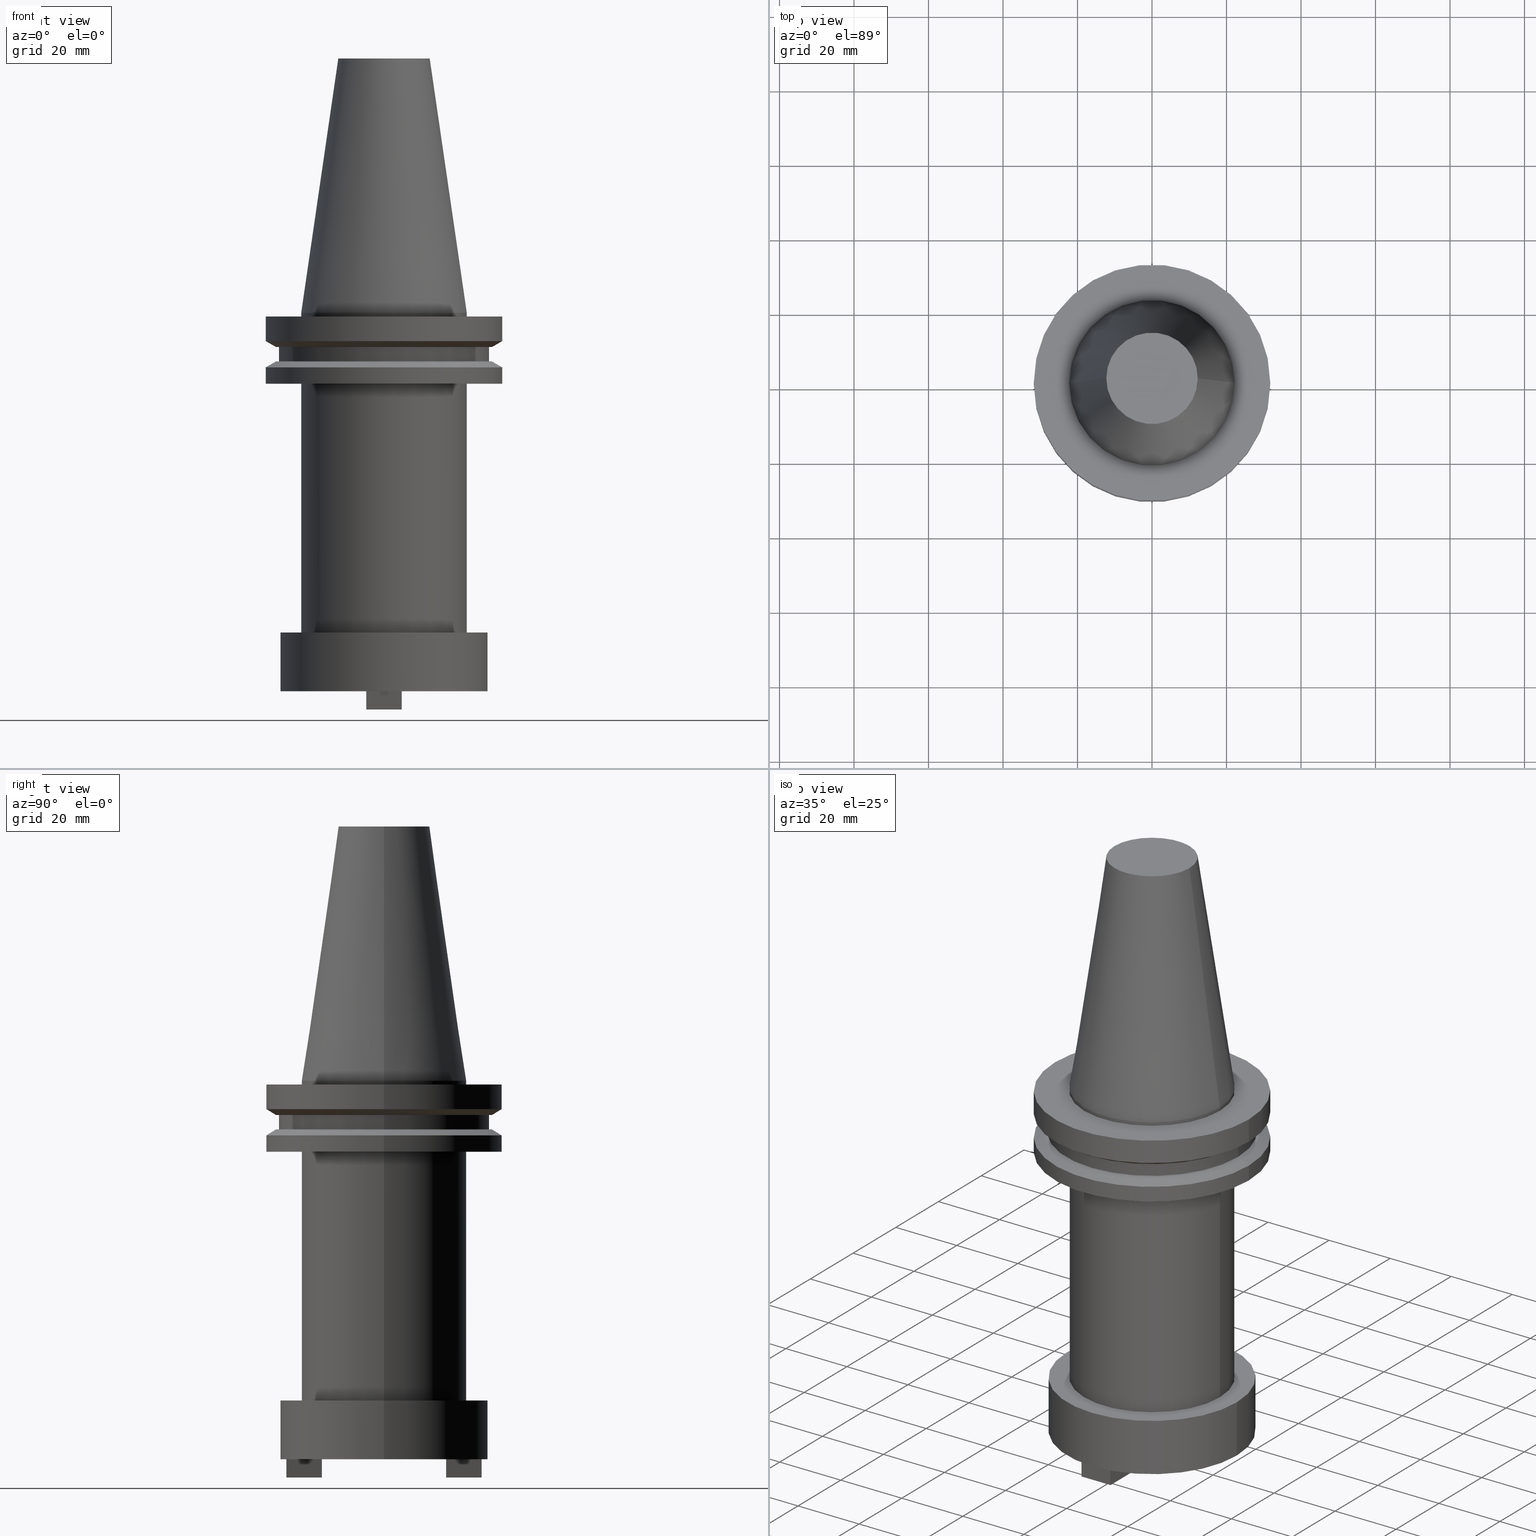
[diagram: canonical four-view strip — front | top / right | iso, engineering-drawing reading convention]
A machine part, canonical four-view strip (front | top / right | iso — engineering-drawing reading convention). The complete STEP part file that produces these views, byte-faithful:
ISO-10303-21;
HEADER;
FILE_DESCRIPTION (( 'STEP AP203' ),
    '1' );
FILE_NAME ('BCV40-SMC1_000-4.STEP',
    '2022-02-28T14:18:40',
    ( '' ),
    ( '' ),
    'SwSTEP 2.0',
    'SolidWorks 2021',
    '' );
FILE_SCHEMA (( 'CONFIG_CONTROL_DESIGN' ));
ENDSEC;

DATA;
#1 = ORIENTED_EDGE ( 'NONE', *, *, #411, .T. ) ;
#2 = DIRECTION ( 'NONE',  ( 0.000000000000000000, -1.000000000000000000, 0.000000000000000000 ) ) ;
#3 = ORIENTED_EDGE ( 'NONE', *, *, #448, .T. ) ;
#4 = CYLINDRICAL_SURFACE ( 'NONE', #814, 22.22500000000000142 ) ;
#5 = ADVANCED_FACE ( 'NONE', ( #953 ), #254, .T. ) ;
#6 = VERTEX_POINT ( 'NONE', #458 ) ;
#7 = CARTESIAN_POINT ( 'NONE',  ( -31.75000000000000000, 3.888253587292846476E-15, -14.65472339340266572 ) ) ;
#8 = EDGE_LOOP ( 'NONE', ( #907, #57, #160, #173 ) ) ;
#9 = AXIS2_PLACEMENT_3D ( 'NONE', #252, #112, #1004 ) ;
#10 = CARTESIAN_POINT ( 'NONE',  ( 0.000000000000000000, 0.000000000000000000, -101.5999999999999943 ) ) ;
#11 = ORIENTED_EDGE ( 'NONE', *, *, #49, .T. ) ;
#12 = LINE ( 'NONE', #352, #201 ) ;
#13 = ADVANCED_FACE ( 'NONE', ( #381 ), #730, .T. ) ;
#14 = VECTOR ( 'NONE', #235, 1000.000000000000000 ) ;
#15 = ORIENTED_EDGE ( 'NONE', *, *, #485, .T. ) ;
#16 = DIRECTION ( 'NONE',  ( -0.000000000000000000, -0.000000000000000000, 1.000000000000000000 ) ) ;
#17 = VERTEX_POINT ( 'NONE', #469 ) ;
#18 = FACE_OUTER_BOUND ( 'NONE', #971, .T. ) ;
#19 = EDGE_CURVE ( 'NONE', #443, #344, #875, .T. ) ;
#20 = ORIENTED_EDGE ( 'NONE', *, *, #1088, .F. ) ;
#21 = CARTESIAN_POINT ( 'NONE',  ( 0.000000000000000000, 28.97919780457007732, -9.204999999999996518 ) ) ;
#22 = EDGE_LOOP ( 'NONE', ( #138, #752 ) ) ;
#23 = FACE_BOUND ( 'NONE', #598, .T. ) ;
#24 = VERTEX_POINT ( 'NONE', #199 ) ;
#25 = PRODUCT ( 'BCV40-SMC1_000-4', 'BCV40-SMC1_000-4', '', ( #575 ) ) ;
#26 = CARTESIAN_POINT ( 'NONE',  ( 4.762499999999998401, 16.68249999999999744, -106.5000000000000000 ) ) ;
#27 = VERTEX_POINT ( 'NONE', #464 ) ;
#28 = LINE ( 'NONE', #1048, #294 ) ;
#29 = EDGE_LOOP ( 'NONE', ( #366, #74, #646, #640 ) ) ;
#30 = AXIS2_PLACEMENT_3D ( 'NONE', #713, #876, #861 ) ;
#31 = CONICAL_SURFACE ( 'NONE', #1070, 28.97919780457007732, 1.047197551196598297 ) ;
#32 = CARTESIAN_POINT ( 'NONE',  ( 4.762499999999998401, 26.20749999999999957, -101.5999999999999943 ) ) ;
#33 = EDGE_CURVE ( 'NONE', #552, #452, #870, .T. ) ;
#34 = DIRECTION ( 'NONE',  ( 1.000000000000000000, 0.000000000000000000, 0.000000000000000000 ) ) ;
#35 = ADVANCED_FACE ( 'NONE', ( #128 ), #479, .T. ) ;
#36 = CARTESIAN_POINT ( 'NONE',  ( 0.000000000000000000, 31.74999999999999289, -19.04999999999999716 ) ) ;
#37 = ORIENTED_EDGE ( 'NONE', *, *, #323, .T. ) ;
#38 = DIRECTION ( 'NONE',  ( -0.000000000000000000, -0.000000000000000000, 1.000000000000000000 ) ) ;
#39 = LINE ( 'NONE', #124, #906 ) ;
#40 = ADVANCED_FACE ( 'NONE', ( #841 ), #237, .F. ) ;
#41 = LINE ( 'NONE', #378, #189 ) ;
#42 = EDGE_LOOP ( 'NONE', ( #1084, #234, #100, #1027 ) ) ;
#43 = LINE ( 'NONE', #123, #681 ) ;
#44 = DIRECTION ( 'NONE',  ( -0.1443082272672999711, 0.000000000000000000, -0.9895327864921755756 ) ) ;
#45 = CIRCLE ( 'NONE', #183, 27.79999999999999361 ) ;
#46 = AXIS2_PLACEMENT_3D ( 'NONE', #951, #866, #115 ) ;
#47 = DIRECTION ( 'NONE',  ( 1.000000000000000000, 0.000000000000000000, 0.000000000000000000 ) ) ;
#48 = PERSON_AND_ORGANIZATION ( #928, #793 ) ;
#49 = EDGE_CURVE ( 'NONE', #24, #255, #1062, .T. ) ;
#50 = EDGE_LOOP ( 'NONE', ( #298, #445, #744, #993 ) ) ;
#51 = ORIENTED_EDGE ( 'NONE', *, *, #286, .F. ) ;
#52 = DIRECTION ( 'NONE',  ( 1.000000000000000000, 0.000000000000000000, 0.000000000000000000 ) ) ;
#53 = AXIS2_PLACEMENT_3D ( 'NONE', #121, #728, #309 ) ;
#54 = CARTESIAN_POINT ( 'NONE',  ( 28.17999999999999972, 0.000000000000000000, -9.204999999999991189 ) ) ;
#55 = CARTESIAN_POINT ( 'NONE',  ( -31.75000000000000000, 3.888253587292846476E-15, -7.605276606597335842 ) ) ;
#56 = COORDINATED_UNIVERSAL_TIME_OFFSET ( 6, 0, .BEHIND. ) ;
#57 = ORIENTED_EDGE ( 'NONE', *, *, #740, .F. ) ;
#58 = EDGE_CURVE ( 'NONE', #357, #264, #45, .T. ) ;
#59 = EDGE_LOOP ( 'NONE', ( #533, #540, #553, #432 ) ) ;
#60 = FACE_OUTER_BOUND ( 'NONE', #229, .T. ) ;
#61 = LINE ( 'NONE', #216, #650 ) ;
#62 = CALENDAR_DATE ( 2022, 28, 2 ) ;
#63 = ORIENTED_EDGE ( 'NONE', *, *, #1005, .T. ) ;
#64 = DIRECTION ( 'NONE',  ( 1.000000000000000000, 0.000000000000000000, 0.000000000000000000 ) ) ;
#65 = VECTOR ( 'NONE', #932, 1000.000000000000000 ) ;
#66 = DIRECTION ( 'NONE',  ( -1.000000000000000000, 0.000000000000000000, -0.000000000000000000 ) ) ;
#67 = COORDINATED_UNIVERSAL_TIME_OFFSET ( 6, 0, .BEHIND. ) ;
#68 = AXIS2_PLACEMENT_3D ( 'NONE', #783, #440, #257 ) ;
#69 = ORIENTED_EDGE ( 'NONE', *, *, #773, .T. ) ;
#70 = DIRECTION ( 'NONE',  ( -0.000000000000000000, 0.000000000000000000, -1.000000000000000000 ) ) ;
#71 = ADVANCED_FACE ( 'NONE', ( #80 ), #231, .T. ) ;
#72 = VECTOR ( 'NONE', #433, 1000.000000000000000 ) ;
#73 = FACE_OUTER_BOUND ( 'NONE', #190, .T. ) ;
#74 = ORIENTED_EDGE ( 'NONE', *, *, #925, .T. ) ;
#75 = CARTESIAN_POINT ( 'NONE',  ( -4.762500000000001954, 26.20749999999999957, -106.5000000000000000 ) ) ;
#76 = DIRECTION ( 'NONE',  ( -1.000000000000000000, 0.000000000000000000, -0.000000000000000000 ) ) ;
#77 = CC_DESIGN_PERSON_AND_ORGANIZATION_ASSIGNMENT ( #48, #495, ( #276 ) ) ;
#78 = EDGE_LOOP ( 'NONE', ( #145, #891 ) ) ;
#79 = DIRECTION ( 'NONE',  ( 0.000000000000000000, 0.000000000000000000, -1.000000000000000000 ) ) ;
#80 = FACE_OUTER_BOUND ( 'NONE', #659, .T. ) ;
#81 = VECTOR ( 'NONE', #2, 1000.000000000000000 ) ;
#82 = ADVANCED_FACE ( 'NONE', ( #996 ), #904, .T. ) ;
#83 = ORIENTED_EDGE ( 'NONE', *, *, #879, .T. ) ;
#84 = CARTESIAN_POINT ( 'NONE',  ( -31.74999999999999289, 3.888253587292845687E-15, -19.04999999999999716 ) ) ;
#85 = CC_DESIGN_APPROVAL ( #354, ( #596 ) ) ;
#86 = CIRCLE ( 'NONE', #702, 31.75000000000000000 ) ;
#87 = PLANE ( 'NONE',  #867 ) ;
#88 = LOCAL_TIME ( 8, 18, 40.00000000000000000, #322 ) ;
#89 = VECTOR ( 'NONE', #842, 999.9999999999998863 ) ;
#90 = ORIENTED_EDGE ( 'NONE', *, *, #335, .F. ) ;
#91 = DIRECTION ( 'NONE',  ( -0.000000000000000000, -0.000000000000000000, 1.000000000000000000 ) ) ;
#92 = CARTESIAN_POINT ( 'NONE',  ( 0.000000000000000000, 0.000000000000000000, -13.05499999999999794 ) ) ;
#93 = ORIENTED_EDGE ( 'NONE', *, *, #119, .T. ) ;
#94 = PLANE ( 'NONE',  #243 ) ;
#95 = FACE_OUTER_BOUND ( 'NONE', #272, .T. ) ;
#96 = ORIENTED_EDGE ( 'NONE', *, *, #947, .T. ) ;
#97 = AXIS2_PLACEMENT_3D ( 'NONE', #414, #750, #1078 ) ;
#98 = AXIS2_PLACEMENT_3D ( 'NONE', #301, #461, #367 ) ;
#99 = CARTESIAN_POINT ( 'NONE',  ( 28.97919780457007732, 0.000000000000000000, -9.205000000000005400 ) ) ;
#100 = ORIENTED_EDGE ( 'NONE', *, *, #33, .F. ) ;
#101 = DIRECTION ( 'NONE',  ( 0.000000000000000000, 0.000000000000000000, -1.000000000000000000 ) ) ;
#102 = EDGE_CURVE ( 'NONE', #223, #362, #936, .T. ) ;
#103 = AXIS2_PLACEMENT_3D ( 'NONE', #110, #1053, #865 ) ;
#104 = ORIENTED_EDGE ( 'NONE', *, *, #594, .T. ) ;
#105 = CARTESIAN_POINT ( 'NONE',  ( 0.000000000000000000, 0.000000000000000000, 68.25000000000000000 ) ) ;
#106 = EDGE_LOOP ( 'NONE', ( #535, #96, #796, #219 ) ) ;
#107 = DIRECTION ( 'NONE',  ( -0.000000000000000000, -0.000000000000000000, 1.000000000000000000 ) ) ;
#108 = ADVANCED_FACE ( 'NONE', ( #503 ), #824, .T. ) ;
#109 = ORIENTED_EDGE ( 'NONE', *, *, #717, .F. ) ;
#110 = CARTESIAN_POINT ( 'NONE',  ( 0.000000000000000000, 0.000000000000000000, -19.04999999999999716 ) ) ;
#111 = EDGE_LOOP ( 'NONE', ( #305, #187 ) ) ;
#112 = DIRECTION ( 'NONE',  ( -0.000000000000000000, -0.000000000000000000, 1.000000000000000000 ) ) ;
#113 = ORIENTED_EDGE ( 'NONE', *, *, #672, .F. ) ;
#114 = DIRECTION ( 'NONE',  ( 1.000000000000000000, 0.000000000000000000, 0.000000000000000000 ) ) ;
#115 = DIRECTION ( 'NONE',  ( -1.000000000000000000, 0.000000000000000000, -0.000000000000000000 ) ) ;
#116 = CARTESIAN_POINT ( 'NONE',  ( 0.000000000000000000, 0.000000000000000000, -9.205000000000005400 ) ) ;
#117 = EDGE_LOOP ( 'NONE', ( #890, #807, #912, #155 ) ) ;
#118 = CARTESIAN_POINT ( 'NONE',  ( -5.754999999999989235, 7.047842329093004936E-16, -35.04999999999999716 ) ) ;
#119 = EDGE_CURVE ( 'NONE', #959, #790, #470, .T. ) ;
#120 = CARTESIAN_POINT ( 'NONE',  ( 31.74999999999999289, 0.000000000000000000, -19.04999999999999716 ) ) ;
#121 = CARTESIAN_POINT ( 'NONE',  ( 4.762499999999998401, -26.20750000000000313, -106.5000000000000000 ) ) ;
#122 = EDGE_LOOP ( 'NONE', ( #63, #817, #820, #1058 ) ) ;
#123 = CARTESIAN_POINT ( 'NONE',  ( 28.17999999999999972, 0.000000000000000000, 68.25000000000000000 ) ) ;
#124 = CARTESIAN_POINT ( 'NONE',  ( -22.22500000000000142, 2.721777511104992849E-15, 68.25000000000000000 ) ) ;
#125 = EDGE_CURVE ( 'NONE', #948, #780, #253, .T. ) ;
#126 = PLANE ( 'NONE',  #510 ) ;
#127 = PERSON_AND_ORGANIZATION ( #928, #793 ) ;
#128 = FACE_OUTER_BOUND ( 'NONE', #195, .T. ) ;
#129 = ORIENTED_EDGE ( 'NONE', *, *, #739, .F. ) ;
#130 = CYLINDRICAL_SURFACE ( 'NONE', #923, 31.75000000000000000 ) ;
#131 = DIRECTION ( 'NONE',  ( -0.000000000000000000, -0.000000000000000000, 1.000000000000000000 ) ) ;
#132 = AXIS2_PLACEMENT_3D ( 'NONE', #363, #271, #611 ) ;
#133 = VECTOR ( 'NONE', #727, 1000.000000000000000 ) ;
#134 = CARTESIAN_POINT ( 'NONE',  ( 5.754999999999989235, 0.000000000000000000, -35.04999999999999716 ) ) ;
#135 =( NAMED_UNIT ( * ) SI_UNIT ( $, .STERADIAN. ) SOLID_ANGLE_UNIT ( ) );
#136 = ADVANCED_FACE ( 'NONE', ( #910, #587 ), #87, .F. ) ;
#137 = DIRECTION ( 'NONE',  ( -0.000000000000000000, 1.000000000000000000, -0.000000000000000000 ) ) ;
#138 = ORIENTED_EDGE ( 'NONE', *, *, #125, .F. ) ;
#139 = CIRCLE ( 'NONE', #911, 27.79999999999999361 ) ;
#140 = AXIS2_PLACEMENT_3D ( 'NONE', #241, #1082, #585 ) ;
#141 = CARTESIAN_POINT ( 'NONE',  ( 31.75000000000000000, 0.000000000000000000, -14.65472339340266572 ) ) ;
#142 = AXIS2_PLACEMENT_3D ( 'NONE', #1017, #506, #781 ) ;
#143 = CARTESIAN_POINT ( 'NONE',  ( 12.27178102086201150, 2.112318622904291439E-15, 68.25000000000000000 ) ) ;
#144 = CALENDAR_DATE ( 2022, 28, 2 ) ;
#145 = ORIENTED_EDGE ( 'NONE', *, *, #307, .T. ) ;
#146 = DIRECTION ( 'NONE',  ( 0.000000000000000000, 0.000000000000000000, -1.000000000000000000 ) ) ;
#147 = DIRECTION ( 'NONE',  ( -0.000000000000000000, -0.000000000000000000, 1.000000000000000000 ) ) ;
#148 = APPROVAL_STATUS ( 'not_yet_approved' ) ;
#149 = VERTEX_POINT ( 'NONE', #834 ) ;
#150 = EDGE_CURVE ( 'NONE', #396, #832, #410, .T. ) ;
#151 = LINE ( 'NONE', #75, #512 ) ;
#152 = DIRECTION ( 'NONE',  ( -1.000000000000000000, 0.000000000000000000, 0.000000000000000000 ) ) ;
#153 = APPROVAL_ROLE ( '' ) ;
#154 = AXIS2_PLACEMENT_3D ( 'NONE', #175, #514, #593 ) ;
#155 = ORIENTED_EDGE ( 'NONE', *, *, #773, .F. ) ;
#156 = DIRECTION ( 'NONE',  ( -1.000000000000000000, 0.000000000000000000, 0.000000000000000000 ) ) ;
#157 = CC_DESIGN_PERSON_AND_ORGANIZATION_ASSIGNMENT ( #644, #232, ( #596 ) ) ;
#158 = VECTOR ( 'NONE', #786, 1000.000000000000000 ) ;
#159 = CARTESIAN_POINT ( 'NONE',  ( 0.000000000000000000, 0.000000000000000000, -13.05499999999999794 ) ) ;
#160 = ORIENTED_EDGE ( 'NONE', *, *, #415, .T. ) ;
#161 = DIRECTION ( 'NONE',  ( -0.000000000000000000, -0.000000000000000000, 1.000000000000000000 ) ) ;
#162 = EDGE_LOOP ( 'NONE', ( #192, #1071, #809, #560 ) ) ;
#163 = LINE ( 'NONE', #321, #491 ) ;
#164 = EDGE_CURVE ( 'NONE', #362, #595, #741, .T. ) ;
#165 = ORIENTED_EDGE ( 'NONE', *, *, #1005, .F. ) ;
#166 = FACE_OUTER_BOUND ( 'NONE', #748, .T. ) ;
#167 = DIRECTION ( 'NONE',  ( -0.000000000000000000, -0.000000000000000000, 1.000000000000000000 ) ) ;
#168 = ORIENTED_EDGE ( 'NONE', *, *, #594, .F. ) ;
#169 = CARTESIAN_POINT ( 'NONE',  ( 22.22500000000000142, 2.721777511104992849E-15, 0.000000000000000000 ) ) ;
#170 = ORIENTED_EDGE ( 'NONE', *, *, #517, .T. ) ;
#171 = LINE ( 'NONE', #519, #825 ) ;
#172 = AXIS2_PLACEMENT_3D ( 'NONE', #263, #1009, #444 ) ;
#173 = ORIENTED_EDGE ( 'NONE', *, *, #125, .T. ) ;
#174 = LINE ( 'NONE', #518, #72 ) ;
#175 = CARTESIAN_POINT ( 'NONE',  ( 0.000000000000000000, 0.000000000000000000, 0.000000000000000000 ) ) ;
#176 = ORIENTED_EDGE ( 'NONE', *, *, #119, .F. ) ;
#177 = ADVANCED_FACE ( 'NONE', ( #248, #590 ), #756, .F. ) ;
#178 = CYLINDRICAL_SURFACE ( 'NONE', #142, 28.17999999999999972 ) ;
#179 = CIRCLE ( 'NONE', #1076, 22.22500000000000142 ) ;
#180 = CIRCLE ( 'NONE', #803, 28.97919780457008088 ) ;
#181 = DIRECTION ( 'NONE',  ( 1.000000000000000000, 0.000000000000000000, 0.000000000000000000 ) ) ;
#182 = ORIENTED_EDGE ( 'NONE', *, *, #556, .F. ) ;
#183 = AXIS2_PLACEMENT_3D ( 'NONE', #656, #507, #1068 ) ;
#184 = VECTOR ( 'NONE', #534, 1000.000000000000000 ) ;
#185 = DIRECTION ( 'NONE',  ( -0.000000000000000000, -0.000000000000000000, 1.000000000000000000 ) ) ;
#186 = EDGE_CURVE ( 'NONE', #800, #355, #163, .T. ) ;
#187 = ORIENTED_EDGE ( 'NONE', *, *, #994, .F. ) ;
#188 = DIRECTION ( 'NONE',  ( -0.000000000000000000, -0.000000000000000000, 1.000000000000000000 ) ) ;
#189 = VECTOR ( 'NONE', #1064, 1000.000000000000000 ) ;
#190 = EDGE_LOOP ( 'NONE', ( #882, #113, #898, #663 ) ) ;
#191 = DIRECTION ( 'NONE',  ( -0.000000000000000000, -0.000000000000000000, 1.000000000000000000 ) ) ;
#192 = ORIENTED_EDGE ( 'NONE', *, *, #556, .T. ) ;
#193 = CARTESIAN_POINT ( 'NONE',  ( 31.75000000000000000, 0.000000000000000000, -7.605276606597335842 ) ) ;
#194 = ADVANCED_FACE ( 'NONE', ( #73 ), #326, .F. ) ;
#195 = EDGE_LOOP ( 'NONE', ( #984, #765, #513, #844 ) ) ;
#196 = DIRECTION ( 'NONE',  ( -0.000000000000000000, -0.000000000000000000, 1.000000000000000000 ) ) ;
#197 = CARTESIAN_POINT ( 'NONE',  ( 27.79999999999999361, 0.000000000000000000, -101.5999999999999943 ) ) ;
#198 = DIRECTION ( 'NONE',  ( 1.000000000000000000, -0.000000000000000000, -0.000000000000000000 ) ) ;
#199 = CARTESIAN_POINT ( 'NONE',  ( 22.22500000000000142, 0.000000000000000000, -1.000000000000000888 ) ) ;
#200 = ADVANCED_FACE ( 'NONE', ( #764, #95 ), #435, .F. ) ;
#201 = VECTOR ( 'NONE', #946, 1000.000000000000000 ) ;
#202 = CYLINDRICAL_SURFACE ( 'NONE', #207, 22.22500000000000142 ) ;
#203 = CIRCLE ( 'NONE', #98, 27.79999999999999361 ) ;
#204 = DIRECTION ( 'NONE',  ( 1.000000000000000000, 0.000000000000000000, 0.000000000000000000 ) ) ;
#205 = PLANE ( 'NONE',  #53 ) ;
#206 = DIRECTION ( 'NONE',  ( 0.000000000000000000, 0.000000000000000000, -1.000000000000000000 ) ) ;
#207 = AXIS2_PLACEMENT_3D ( 'NONE', #543, #38, #375 ) ;
#208 = EDGE_CURVE ( 'NONE', #1030, #864, #839, .T. ) ;
#209 = DIRECTION ( 'NONE',  ( -0.000000000000000000, -0.000000000000000000, 1.000000000000000000 ) ) ;
#210 = DIRECTION ( 'NONE',  ( -0.000000000000000000, -0.000000000000000000, 1.000000000000000000 ) ) ;
#211 = DIRECTION ( 'NONE',  ( 1.000000000000000000, 0.000000000000000000, 0.000000000000000000 ) ) ;
#212 = VERTEX_POINT ( 'NONE', #7 ) ;
#213 = ORIENTED_EDGE ( 'NONE', *, *, #186, .F. ) ;
#214 = CARTESIAN_POINT ( 'NONE',  ( 4.762499999999998401, -16.68250000000000099, -106.5000000000000000 ) ) ;
#215 = DIRECTION ( 'NONE',  ( -0.000000000000000000, -0.000000000000000000, 1.000000000000000000 ) ) ;
#216 = CARTESIAN_POINT ( 'NONE',  ( 4.762499999999998401, 26.20749999999999957, -106.5000000000000000 ) ) ;
#217 = APPROVAL_DATE_TIME ( #399, #354 ) ;
#218 = CARTESIAN_POINT ( 'NONE',  ( 0.000000000000000000, 0.000000000000000000, -14.65472339340266572 ) ) ;
#219 = ORIENTED_EDGE ( 'NONE', *, *, #852, .T. ) ;
#220 = CARTESIAN_POINT ( 'NONE',  ( 0.000000000000000000, 0.000000000000000000, -101.5999999999999943 ) ) ;
#221 = CARTESIAN_POINT ( 'NONE',  ( -4.762500000000001954, -16.68250000000000099, -106.5000000000000000 ) ) ;
#222 = CARTESIAN_POINT ( 'NONE',  ( -4.762500000000001954, -26.20750000000000313, -101.5999999999999943 ) ) ;
#223 = VERTEX_POINT ( 'NONE', #1019 ) ;
#224 = AXIS2_PLACEMENT_3D ( 'NONE', #871, #191, #701 ) ;
#225 = DIRECTION ( 'NONE',  ( -0.000000000000000000, -0.000000000000000000, 1.000000000000000000 ) ) ;
#226 = CARTESIAN_POINT ( 'NONE',  ( -4.762500000000001954, -16.68250000000000099, -106.5000000000000000 ) ) ;
#227 = APPROVAL_STATUS ( 'not_yet_approved' ) ;
#228 = ADVANCED_FACE ( 'NONE', ( #679, #18, #690, #23 ), #927, .F. ) ;
#229 = EDGE_LOOP ( 'NONE', ( #1057, #712, #689, #978 ) ) ;
#230 = LINE ( 'NONE', #1072, #802 ) ;
#231 = CYLINDRICAL_SURFACE ( 'NONE', #735, 31.75000000000000000 ) ;
#232 = PERSON_AND_ORGANIZATION_ROLE ( 'creator' ) ;
#233 = CC_DESIGN_PERSON_AND_ORGANIZATION_ASSIGNMENT ( #483, #551, ( #548 ) ) ;
#234 = ORIENTED_EDGE ( 'NONE', *, *, #428, .F. ) ;
#235 = DIRECTION ( 'NONE',  ( 1.000000000000000000, -0.000000000000000000, -0.000000000000000000 ) ) ;
#236 = CIRCLE ( 'NONE', #561, 31.75000000000000000 ) ;
#237 = PLANE ( 'NONE',  #920 ) ;
#238 = VECTOR ( 'NONE', #392, 1000.000000000000000 ) ;
#239 = VERTEX_POINT ( 'NONE', #696 ) ;
#240 = EDGE_CURVE ( 'NONE', #344, #755, #1014, .T. ) ;
#241 = CARTESIAN_POINT ( 'NONE',  ( 4.762499999999998401, -16.68250000000000099, -106.5000000000000000 ) ) ;
#242 = AXIS2_PLACEMENT_3D ( 'NONE', #36, #819, #558 ) ;
#243 = AXIS2_PLACEMENT_3D ( 'NONE', #21, #361, #597 ) ;
#244 = DIRECTION ( 'NONE',  ( -0.000000000000000000, -0.000000000000000000, 1.000000000000000000 ) ) ;
#245 = ORIENTED_EDGE ( 'NONE', *, *, #428, .T. ) ;
#246 = CYLINDRICAL_SURFACE ( 'NONE', #280, 22.22500000000000142 ) ;
#247 = EDGE_CURVE ( 'NONE', #639, #674, #343, .T. ) ;
#248 = FACE_BOUND ( 'NONE', #979, .T. ) ;
#249 = EDGE_LOOP ( 'NONE', ( #486, #634, #3, #51 ) ) ;
#250 = CARTESIAN_POINT ( 'NONE',  ( -4.762500000000001954, 16.68249999999999744, -106.5000000000000000 ) ) ;
#251 = EDGE_LOOP ( 'NONE', ( #388, #972 ) ) ;
#252 = CARTESIAN_POINT ( 'NONE',  ( 0.000000000000000000, 0.000000000000000000, 68.25000000000000000 ) ) ;
#253 = CIRCLE ( 'NONE', #612, 5.754999999999989235 ) ;
#254 = CONICAL_SURFACE ( 'NONE', #382, 31.75000000000000000, 1.047197551196597853 ) ;
#255 = VERTEX_POINT ( 'NONE', #265 ) ;
#256 = FACE_OUTER_BOUND ( 'NONE', #1006, .T. ) ;
#257 = DIRECTION ( 'NONE',  ( 1.000000000000000000, 0.000000000000000000, 0.000000000000000000 ) ) ;
#258 = CIRCLE ( 'NONE', #457, 22.22500000000000142 ) ;
#259 = APPROVAL ( #227, 'UNSPECIFIED' ) ;
#260 = EDGE_CURVE ( 'NONE', #264, #149, #12, .T. ) ;
#261 = ORIENTED_EDGE ( 'NONE', *, *, #448, .F. ) ;
#262 = ADVANCED_FACE ( 'NONE', ( #346 ), #1023, .T. ) ;
#263 = CARTESIAN_POINT ( 'NONE',  ( 4.762499999999998401, -16.68250000000000099, -106.5000000000000000 ) ) ;
#264 = VERTEX_POINT ( 'NONE', #940 ) ;
#265 = CARTESIAN_POINT ( 'NONE',  ( -22.22500000000000142, 2.721777511104992849E-15, -1.000000000000000888 ) ) ;
#266 = ORIENTED_EDGE ( 'NONE', *, *, #785, .T. ) ;
#267 = EDGE_CURVE ( 'NONE', #1012, #277, #236, .T. ) ;
#268 = CARTESIAN_POINT ( 'NONE',  ( 4.762499999999998401, 16.68249999999999744, -106.5000000000000000 ) ) ;
#269 = AXIS2_PLACEMENT_3D ( 'NONE', #413, #64, #79 ) ;
#270 = VERTEX_POINT ( 'NONE', #617 ) ;
#271 = DIRECTION ( 'NONE',  ( 0.000000000000000000, -0.000000000000000000, 1.000000000000000000 ) ) ;
#272 = EDGE_LOOP ( 'NONE', ( #439, #787 ) ) ;
#273 = AXIS2_PLACEMENT_3D ( 'NONE', #421, #339, #571 ) ;
#274 = CARTESIAN_POINT ( 'NONE',  ( 0.000000000000000000, 0.000000000000000000, -14.65472339340266572 ) ) ;
#275 = EDGE_CURVE ( 'NONE', #239, #270, #698, .T. ) ;
#276 = SECURITY_CLASSIFICATION ( '', '', #1061 ) ;
#277 = VERTEX_POINT ( 'NONE', #193 ) ;
#278 = DIRECTION ( 'NONE',  ( 1.000000000000000000, 0.000000000000000000, 0.000000000000000000 ) ) ;
#279 = CC_DESIGN_APPROVAL ( #628, ( #548 ) ) ;
#280 = AXIS2_PLACEMENT_3D ( 'NONE', #418, #903, #909 ) ;
#281 = ORIENTED_EDGE ( 'NONE', *, *, #307, .F. ) ;
#282 = LINE ( 'NONE', #614, #615 ) ;
#283 = ORIENTED_EDGE ( 'NONE', *, *, #879, .F. ) ;
#284 = LINE ( 'NONE', #968, #808 ) ;
#285 = EDGE_CURVE ( 'NONE', #324, #344, #446, .T. ) ;
#286 = EDGE_CURVE ( 'NONE', #212, #595, #525, .T. ) ;
#287 = DIRECTION ( 'NONE',  ( 1.000000000000000000, 0.000000000000000000, 0.000000000000000000 ) ) ;
#288 = CARTESIAN_POINT ( 'NONE',  ( -4.762500000000001954, 26.20749999999999957, -101.5999999999999943 ) ) ;
#289 = DIRECTION ( 'NONE',  ( 0.000000000000000000, -1.000000000000000000, 0.000000000000000000 ) ) ;
#290 = LINE ( 'NONE', #630, #581 ) ;
#291 = DIRECTION ( 'NONE',  ( -0.000000000000000000, -0.000000000000000000, 1.000000000000000000 ) ) ;
#292 = ORIENTED_EDGE ( 'NONE', *, *, #267, .F. ) ;
#293 = LINE ( 'NONE', #629, #319 ) ;
#294 = VECTOR ( 'NONE', #537, 1000.000000000000000 ) ;
#295 = LINE ( 'NONE', #1031, #133 ) ;
#296 = CARTESIAN_POINT ( 'NONE',  ( 4.762499999999998401, 16.68249999999999744, -101.5999999999999943 ) ) ;
#297 = PERSON_AND_ORGANIZATION_ROLE ( 'design_owner' ) ;
#298 = ORIENTED_EDGE ( 'NONE', *, *, #19, .F. ) ;
#299 = EDGE_CURVE ( 'NONE', #639, #755, #599, .T. ) ;
#300 = DIRECTION ( 'NONE',  ( -0.000000000000000000, -0.000000000000000000, 1.000000000000000000 ) ) ;
#301 = CARTESIAN_POINT ( 'NONE',  ( 0.000000000000000000, 0.000000000000000000, -85.84999999999999432 ) ) ;
#302 = CARTESIAN_POINT ( 'NONE',  ( -31.75000000000000000, 3.888253587292846476E-15, -1.000000000000000888 ) ) ;
#303 = PERSON_AND_ORGANIZATION ( #928, #793 ) ;
#304 = EDGE_LOOP ( 'NONE', ( #836, #480, #364, #471 ) ) ;
#305 = ORIENTED_EDGE ( 'NONE', *, *, #49, .F. ) ;
#306 = CARTESIAN_POINT ( 'NONE',  ( 22.22500000000000142, 2.721777511104992849E-15, 0.000000000000000000 ) ) ;
#307 = EDGE_CURVE ( 'NONE', #27, #950, #493, .T. ) ;
#308 = DIRECTION ( 'NONE',  ( -0.000000000000000000, -0.000000000000000000, 1.000000000000000000 ) ) ;
#309 = DIRECTION ( 'NONE',  ( 0.000000000000000000, -0.000000000000000000, 1.000000000000000000 ) ) ;
#310 = DIRECTION ( 'NONE',  ( 1.000000000000000000, 0.000000000000000000, 0.000000000000000000 ) ) ;
#311 = DIRECTION ( 'NONE',  ( -1.000000000000000000, 0.000000000000000000, 0.000000000000000000 ) ) ;
#312 = ORIENTED_EDGE ( 'NONE', *, *, #654, .F. ) ;
#313 = PRODUCT_RELATED_PRODUCT_CATEGORY ( 'detail', '', ( #25 ) ) ;
#314 = DIRECTION ( 'NONE',  ( 1.000000000000000000, 0.000000000000000000, 0.000000000000000000 ) ) ;
#315 = CARTESIAN_POINT ( 'NONE',  ( 4.762499999999998401, 26.20749999999999957, -106.5000000000000000 ) ) ;
#316 = DATE_AND_TIME ( #144, #475 ) ;
#317 = DESIGN_CONTEXT ( 'detailed design', #342, 'design' ) ;
#318 = VERTEX_POINT ( 'NONE', #761 ) ;
#319 = VECTOR ( 'NONE', #961, 1000.000000000000000 ) ;
#320 = CARTESIAN_POINT ( 'NONE',  ( 0.000000000000000000, 0.000000000000000000, 0.000000000000000000 ) ) ;
#321 = CARTESIAN_POINT ( 'NONE',  ( 4.762499999999998401, -16.68250000000000099, -106.5000000000000000 ) ) ;
#322 = COORDINATED_UNIVERSAL_TIME_OFFSET ( 6, 0, .BEHIND. ) ;
#323 = EDGE_CURVE ( 'NONE', #915, #6, #627, .T. ) ;
#324 = VERTEX_POINT ( 'NONE', #922 ) ;
#325 = DIRECTION ( 'NONE',  ( 1.000000000000000000, 0.000000000000000000, 0.000000000000000000 ) ) ;
#326 = PLANE ( 'NONE',  #97 ) ;
#327 = MANIFOLD_SOLID_BREP ( 'SQ', #789 ) ;
#328 = EDGE_CURVE ( 'NONE', #396, #800, #171, .T. ) ;
#329 = ORIENTED_EDGE ( 'NONE', *, *, #877, .F. ) ;
#330 = DIRECTION ( 'NONE',  ( -0.000000000000000000, 1.000000000000000000, -0.000000000000000000 ) ) ;
#331 = AXIS2_PLACEMENT_3D ( 'NONE', #582, #488, #152 ) ;
#332 = DIRECTION ( 'NONE',  ( -0.000000000000000000, -0.000000000000000000, 1.000000000000000000 ) ) ;
#333 = AXIS2_PLACEMENT_3D ( 'NONE', #788, #451, #34 ) ;
#334 = ORIENTED_EDGE ( 'NONE', *, *, #380, .F. ) ;
#335 = EDGE_CURVE ( 'NONE', #674, #699, #848, .T. ) ;
#336 = APPROVAL_PERSON_ORGANIZATION ( #303, #628, #153 ) ;
#337 = DIRECTION ( 'NONE',  ( 1.000000000000000000, 0.000000000000000000, 0.000000000000000000 ) ) ;
#338 = VECTOR ( 'NONE', #884, 1000.000000000000000 ) ;
#339 = DIRECTION ( 'NONE',  ( 0.000000000000000000, 0.000000000000000000, -1.000000000000000000 ) ) ;
#340 = ORIENTED_EDGE ( 'NONE', *, *, #247, .F. ) ;
#341 = PLANE ( 'NONE',  #172 ) ;
#342 = APPLICATION_CONTEXT ( 'configuration controlled 3d designs of mechanical parts and assemblies' ) ;
#343 = LINE ( 'NONE', #1025, #81 ) ;
#344 = VERTEX_POINT ( 'NONE', #385 ) ;
#345 = DIRECTION ( 'NONE',  ( -0.000000000000000000, -0.000000000000000000, 1.000000000000000000 ) ) ;
#346 = FACE_OUTER_BOUND ( 'NONE', #610, .T. ) ;
#347 = EDGE_CURVE ( 'NONE', #24, #915, #295, .T. ) ;
#348 = VECTOR ( 'NONE', #137, 1000.000000000000000 ) ;
#349 = ORIENTED_EDGE ( 'NONE', *, *, #1035, .T. ) ;
#350 = DIRECTION ( 'NONE',  ( -0.000000000000000000, -0.000000000000000000, 1.000000000000000000 ) ) ;
#351 = EDGE_LOOP ( 'NONE', ( #1051, #430, #1039, #176 ) ) ;
#352 = CARTESIAN_POINT ( 'NONE',  ( -27.79999999999999361, 3.404518101629641379E-15, 0.000000000000000000 ) ) ;
#353 = CIRCLE ( 'NONE', #872, 28.97919780457007732 ) ;
#354 = APPROVAL ( #148, 'UNSPECIFIED' ) ;
#355 = VERTEX_POINT ( 'NONE', #873 ) ;
#356 = DIRECTION ( 'NONE',  ( -0.000000000000000000, -0.000000000000000000, 1.000000000000000000 ) ) ;
#357 = VERTEX_POINT ( 'NONE', #197 ) ;
#358 = CARTESIAN_POINT ( 'NONE',  ( 0.000000000000000000, 0.000000000000000000, -19.04999999999999716 ) ) ;
#359 = EDGE_LOOP ( 'NONE', ( #731, #90, #340, #683 ) ) ;
#360 = EDGE_CURVE ( 'NONE', #223, #212, #290, .T. ) ;
#361 = DIRECTION ( 'NONE',  ( 0.000000000000000000, -0.000000000000000000, 1.000000000000000000 ) ) ;
#362 = VERTEX_POINT ( 'NONE', #804 ) ;
#363 = CARTESIAN_POINT ( 'NONE',  ( 0.000000000000000000, 27.79999999999999361, -101.5999999999999943 ) ) ;
#364 = ORIENTED_EDGE ( 'NONE', *, *, #411, .F. ) ;
#365 = FACE_OUTER_BOUND ( 'NONE', #59, .T. ) ;
#366 = ORIENTED_EDGE ( 'NONE', *, *, #260, .F. ) ;
#367 = DIRECTION ( 'NONE',  ( 1.000000000000000000, 0.000000000000000000, 0.000000000000000000 ) ) ;
#368 = AXIS2_PLACEMENT_3D ( 'NONE', #10, #350, #944 ) ;
#369 = AXIS2_PLACEMENT_3D ( 'NONE', #913, #161, #502 ) ;
#370 = DIRECTION ( 'NONE',  ( -0.000000000000000000, -0.000000000000000000, 1.000000000000000000 ) ) ;
#371 = CARTESIAN_POINT ( 'NONE',  ( 4.762499999999998401, -16.68250000000000099, -106.5000000000000000 ) ) ;
#372 = DIRECTION ( 'NONE',  ( 1.000000000000000000, 0.000000000000000000, 0.000000000000000000 ) ) ;
#373 = CYLINDRICAL_SURFACE ( 'NONE', #962, 27.79999999999999361 ) ;
#374 = ORIENTED_EDGE ( 'NONE', *, *, #164, .F. ) ;
#375 = DIRECTION ( 'NONE',  ( 1.000000000000000000, 0.000000000000000000, 0.000000000000000000 ) ) ;
#376 = CARTESIAN_POINT ( 'NONE',  ( 4.762499999999998401, -26.20750000000000313, -101.5999999999999943 ) ) ;
#377 = EDGE_CURVE ( 'NONE', #780, #948, #436, .T. ) ;
#378 = CARTESIAN_POINT ( 'NONE',  ( -28.17999999999999972, 3.451054679997241634E-15, 68.25000000000000000 ) ) ;
#379 = SHAPE_DEFINITION_REPRESENTATION ( #697, #609 ) ;
#380 = EDGE_CURVE ( 'NONE', #277, #790, #28, .T. ) ;
#381 = FACE_OUTER_BOUND ( 'NONE', #304, .T. ) ;
#382 = AXIS2_PLACEMENT_3D ( 'NONE', #218, #206, #1032 ) ;
#383 = CARTESIAN_POINT ( 'NONE',  ( -4.762500000000001954, -16.68250000000000099, -101.5999999999999943 ) ) ;
#384 = AXIS2_PLACEMENT_3D ( 'NONE', #794, #624, #204 ) ;
#385 = CARTESIAN_POINT ( 'NONE',  ( -4.762500000000001954, 26.20749999999999957, -101.5999999999999943 ) ) ;
#386 = DIRECTION ( 'NONE',  ( -0.000000000000000000, -0.000000000000000000, 1.000000000000000000 ) ) ;
#387 = DATE_TIME_ROLE ( 'classification_date' ) ;
#388 = ORIENTED_EDGE ( 'NONE', *, *, #275, .F. ) ;
#389 = ADVANCED_FACE ( 'NONE', ( #474 ), #1042, .T. ) ;
#390 = VERTEX_POINT ( 'NONE', #54 ) ;
#391 = FACE_OUTER_BOUND ( 'NONE', #417, .T. ) ;
#392 = DIRECTION ( 'NONE',  ( -0.000000000000000000, -0.000000000000000000, 1.000000000000000000 ) ) ;
#393 = FACE_OUTER_BOUND ( 'NONE', #42, .T. ) ;
#394 = CALENDAR_DATE ( 2022, 28, 2 ) ;
#395 = ORIENTED_EDGE ( 'NONE', *, *, #150, .F. ) ;
#396 = VERTEX_POINT ( 'NONE', #221 ) ;
#397 = FACE_OUTER_BOUND ( 'NONE', #695, .T. ) ;
#398 = DIRECTION ( 'NONE',  ( 0.000000000000000000, 0.000000000000000000, -1.000000000000000000 ) ) ;
#399 = DATE_AND_TIME ( #977, #565 ) ;
#400 = ORIENTED_EDGE ( 'NONE', *, *, #717, .T. ) ;
#401 =( LENGTH_UNIT ( ) NAMED_UNIT ( * ) SI_UNIT ( .MILLI., .METRE. ) );
#402 = VECTOR ( 'NONE', #147, 1000.000000000000000 ) ;
#403 = CARTESIAN_POINT ( 'NONE',  ( 0.000000000000000000, 0.000000000000000000, -19.04999999999999716 ) ) ;
#404 = VECTOR ( 'NONE', #131, 1000.000000000000000 ) ;
#405 = DIRECTION ( 'NONE',  ( 1.000000000000000000, 0.000000000000000000, 0.000000000000000000 ) ) ;
#406 = COORDINATED_UNIVERSAL_TIME_OFFSET ( 6, 0, .BEHIND. ) ;
#407 = ORIENTED_EDGE ( 'NONE', *, *, #434, .F. ) ;
#408 = AXIS2_PLACEMENT_3D ( 'NONE', #949, #196, #114 ) ;
#409 = PLANE ( 'NONE',  #521 ) ;
#410 = LINE ( 'NONE', #226, #402 ) ;
#411 = EDGE_CURVE ( 'NONE', #939, #149, #203, .T. ) ;
#412 = ORIENTED_EDGE ( 'NONE', *, *, #877, .T. ) ;
#413 = CARTESIAN_POINT ( 'NONE',  ( -4.762500000000001954, 26.20749999999999957, -106.5000000000000000 ) ) ;
#414 = CARTESIAN_POINT ( 'NONE',  ( 4.762499999999998401, 16.68249999999999744, -106.5000000000000000 ) ) ;
#415 = EDGE_CURVE ( 'NONE', #917, #948, #284, .T. ) ;
#416 = AXIS2_PLACEMENT_3D ( 'NONE', #818, #225, #980 ) ;
#417 = EDGE_LOOP ( 'NONE', ( #619, #883, #591, #1063 ) ) ;
#418 = CARTESIAN_POINT ( 'NONE',  ( 0.000000000000000000, 0.000000000000000000, 68.25000000000000000 ) ) ;
#419 = VECTOR ( 'NONE', #494, 1000.000000000000000 ) ;
#420 = ORIENTED_EDGE ( 'NONE', *, *, #504, .F. ) ;
#421 = CARTESIAN_POINT ( 'NONE',  ( 0.000000000000000000, 0.000000000000000000, 0.000000000000000000 ) ) ;
#422 = ORIENTED_EDGE ( 'NONE', *, *, #710, .F. ) ;
#423 = VECTOR ( 'NONE', #973, 1000.000000000000000 ) ;
#424 = DIRECTION ( 'NONE',  ( 1.000000000000000000, 0.000000000000000000, 0.000000000000000000 ) ) ;
#425 = ORIENTED_EDGE ( 'NONE', *, *, #579, .F. ) ;
#426 = DIRECTION ( 'NONE',  ( 0.000000000000000000, 0.000000000000000000, -1.000000000000000000 ) ) ;
#427 = ORIENTED_EDGE ( 'NONE', *, *, #240, .T. ) ;
#428 = EDGE_CURVE ( 'NONE', #452, #1081, #811, .T. ) ;
#429 = CARTESIAN_POINT ( 'NONE',  ( 0.000000000000000000, 0.000000000000000000, -9.205000000000005400 ) ) ;
#430 = ORIENTED_EDGE ( 'NONE', *, *, #267, .T. ) ;
#431 = DIRECTION ( 'NONE',  ( -0.000000000000000000, -0.000000000000000000, 1.000000000000000000 ) ) ;
#432 = ORIENTED_EDGE ( 'NONE', *, *, #360, .F. ) ;
#433 = DIRECTION ( 'NONE',  ( -0.8660254037844389297, 1.060575238724907285E-16, 0.4999999999999995004 ) ) ;
#434 = EDGE_CURVE ( 'NONE', #6, #915, #938, .T. ) ;
#435 = PLANE ( 'NONE',  #716 ) ;
#436 = CIRCLE ( 'NONE', #473, 5.754999999999989235 ) ;
#437 = ORIENTED_EDGE ( 'NONE', *, *, #1016, .F. ) ;
#438 = CARTESIAN_POINT ( 'NONE',  ( 0.000000000000000000, 0.000000000000000000, -13.05499999999999794 ) ) ;
#439 = ORIENTED_EDGE ( 'NONE', *, *, #102, .T. ) ;
#440 = DIRECTION ( 'NONE',  ( -0.000000000000000000, -0.000000000000000000, 1.000000000000000000 ) ) ;
#441 = AXIS2_PLACEMENT_3D ( 'NONE', #456, #47, #398 ) ;
#442 = EDGE_CURVE ( 'NONE', #255, #6, #39, .T. ) ;
#443 = VERTEX_POINT ( 'NONE', #455 ) ;
#444 = DIRECTION ( 'NONE',  ( -0.000000000000000000, 0.000000000000000000, 1.000000000000000000 ) ) ;
#445 = ORIENTED_EDGE ( 'NONE', *, *, #967, .F. ) ;
#446 = LINE ( 'NONE', #524, #662 ) ;
#447 = VERTEX_POINT ( 'NONE', #120 ) ;
#448 = EDGE_CURVE ( 'NONE', #447, #595, #709, .T. ) ;
#449 = LINE ( 'NONE', #214, #158 ) ;
#450 = ORIENTED_EDGE ( 'NONE', *, *, #102, .F. ) ;
#451 = DIRECTION ( 'NONE',  ( -0.000000000000000000, -0.000000000000000000, 1.000000000000000000 ) ) ;
#452 = VERTEX_POINT ( 'NONE', #1054 ) ;
#453 = AXIS2_PLACEMENT_3D ( 'NONE', #1045, #370, #622 ) ;
#454 = LINE ( 'NONE', #32, #743 ) ;
#455 = CARTESIAN_POINT ( 'NONE',  ( -4.762500000000001954, 16.68249999999999744, -101.5999999999999943 ) ) ;
#456 = CARTESIAN_POINT ( 'NONE',  ( -4.762500000000001954, -16.68250000000000099, -106.5000000000000000 ) ) ;
#457 = AXIS2_PLACEMENT_3D ( 'NONE', #711, #538, #952 ) ;
#458 = CARTESIAN_POINT ( 'NONE',  ( -22.22500000000000142, 0.000000000000000000, 0.000000000000000000 ) ) ;
#459 = LINE ( 'NONE', #791, #757 ) ;
#460 = EDGE_CURVE ( 'NONE', #605, #1081, #620, .T. ) ;
#461 = DIRECTION ( 'NONE',  ( -0.000000000000000000, -0.000000000000000000, 1.000000000000000000 ) ) ;
#462 = ADVANCED_FACE ( 'NONE', ( #886 ), #1041, .T. ) ;
#463 = PLANE ( 'NONE',  #441 ) ;
#464 = CARTESIAN_POINT ( 'NONE',  ( -12.27178102086201150, 0.000000000000000000, 68.25000000000000000 ) ) ;
#465 = DIRECTION ( 'NONE',  ( -0.000000000000000000, -0.000000000000000000, 1.000000000000000000 ) ) ;
#466 = CARTESIAN_POINT ( 'NONE',  ( -22.22500000000000142, 0.000000000000000000, 0.000000000000000000 ) ) ;
#467 = ADVANCED_FACE ( 'NONE', ( #642 ), #706, .F. ) ;
#468 = DIRECTION ( 'NONE',  ( 1.000000000000000000, 0.000000000000000000, 0.000000000000000000 ) ) ;
#469 = CARTESIAN_POINT ( 'NONE',  ( 22.22500000000000142, 0.000000000000000000, -85.84999999999999432 ) ) ;
#470 = CIRCLE ( 'NONE', #1079, 31.75000000000000000 ) ;
#471 = ORIENTED_EDGE ( 'NONE', *, *, #845, .F. ) ;
#472 = CARTESIAN_POINT ( 'NONE',  ( 0.000000000000000000, 0.000000000000000000, 0.000000000000000000 ) ) ;
#473 = AXIS2_PLACEMENT_3D ( 'NONE', #974, #721, #372 ) ;
#474 = FACE_OUTER_BOUND ( 'NONE', #929, .T. ) ;
#475 = LOCAL_TIME ( 8, 18, 40.00000000000000000, #406 ) ;
#476 = DIRECTION ( 'NONE',  ( 1.000000000000000000, 0.000000000000000000, 0.000000000000000000 ) ) ;
#477 = APPROVAL_ROLE ( '' ) ;
#478 = AXIS2_PLACEMENT_3D ( 'NONE', #472, #465, #966 ) ;
#479 = CYLINDRICAL_SURFACE ( 'NONE', #767, 28.17999999999999972 ) ;
#480 = ORIENTED_EDGE ( 'NONE', *, *, #260, .T. ) ;
#481 = CARTESIAN_POINT ( 'NONE',  ( 4.762499999999998401, -26.20750000000000668, -101.5999999999999943 ) ) ;
#482 = DIRECTION ( 'NONE',  ( 0.000000000000000000, -1.000000000000000000, 0.000000000000000000 ) ) ;
#483 = PERSON_AND_ORGANIZATION ( #928, #793 ) ;
#484 = EDGE_CURVE ( 'NONE', #277, #1012, #1008, .T. ) ;
#485 = EDGE_CURVE ( 'NONE', #27, #6, #544, .T. ) ;
#486 = ORIENTED_EDGE ( 'NONE', *, *, #667, .F. ) ;
#487 = FACE_OUTER_BOUND ( 'NONE', #106, .T. ) ;
#488 = DIRECTION ( 'NONE',  ( -0.000000000000000000, 0.000000000000000000, -1.000000000000000000 ) ) ;
#489 = COORDINATED_UNIVERSAL_TIME_OFFSET ( 6, 0, .BEHIND. ) ;
#490 = ORIENTED_EDGE ( 'NONE', *, *, #150, .T. ) ;
#491 = VECTOR ( 'NONE', #829, 1000.000000000000000 ) ;
#492 = CARTESIAN_POINT ( 'NONE',  ( 0.000000000000000000, 0.000000000000000000, 68.25000000000000000 ) ) ;
#493 = CIRCLE ( 'NONE', #9, 12.27178102086201150 ) ;
#494 = DIRECTION ( 'NONE',  ( 0.8660254037844387076, 1.060575238724906915E-16, -0.4999999999999998890 ) ) ;
#495 = PERSON_AND_ORGANIZATION_ROLE ( 'classification_officer' ) ;
#496 = ORIENTED_EDGE ( 'NONE', *, *, #914, .F. ) ;
#497 = CIRCLE ( 'NONE', #103, 22.22500000000000142 ) ;
#498 = DIRECTION ( 'NONE',  ( -0.000000000000000000, -0.000000000000000000, 1.000000000000000000 ) ) ;
#499 = ADVANCED_FACE ( 'NONE', ( #397 ), #837, .T. ) ;
#500 = ADVANCED_FACE ( 'NONE', ( #487 ), #647, .T. ) ;
#501 = CARTESIAN_POINT ( 'NONE',  ( 0.000000000000000000, 31.75000000000000000, -0.9999999999999995559 ) ) ;
#502 = DIRECTION ( 'NONE',  ( 1.000000000000000000, 0.000000000000000000, 0.000000000000000000 ) ) ;
#503 = FACE_OUTER_BOUND ( 'NONE', #670, .T. ) ;
#504 = EDGE_CURVE ( 'NONE', #707, #390, #657, .T. ) ;
#505 = ORIENTED_EDGE ( 'NONE', *, *, #947, .F. ) ;
#506 = DIRECTION ( 'NONE',  ( -0.000000000000000000, -0.000000000000000000, 1.000000000000000000 ) ) ;
#507 = DIRECTION ( 'NONE',  ( -0.000000000000000000, -0.000000000000000000, 1.000000000000000000 ) ) ;
#508 = ADVANCED_FACE ( 'NONE', ( #60 ), #668, .F. ) ;
#509 = ORIENTED_EDGE ( 'NONE', *, *, #328, .T. ) ;
#510 = AXIS2_PLACEMENT_3D ( 'NONE', #813, #896, #631 ) ;
#511 = DIRECTION ( 'NONE',  ( -0.000000000000000000, -0.000000000000000000, 1.000000000000000000 ) ) ;
#512 = VECTOR ( 'NONE', #330, 1000.000000000000000 ) ;
#513 = ORIENTED_EDGE ( 'NONE', *, *, #635, .F. ) ;
#514 = DIRECTION ( 'NONE',  ( -0.000000000000000000, -0.000000000000000000, 1.000000000000000000 ) ) ;
#515 = AXIS2_PLACEMENT_3D ( 'NONE', #918, #777, #1003 ) ;
#516 = ORIENTED_EDGE ( 'NONE', *, *, #687, .T. ) ;
#517 = EDGE_CURVE ( 'NONE', #665, #917, #885, .T. ) ;
#518 = CARTESIAN_POINT ( 'NONE',  ( -28.97919780457007732, 3.548928183322474856E-15, -9.205000000000005400 ) ) ;
#519 = CARTESIAN_POINT ( 'NONE',  ( 4.762499999999998401, -16.68250000000000099, -106.5000000000000000 ) ) ;
#520 = EDGE_LOOP ( 'NONE', ( #1, #775 ) ) ;
#521 = AXIS2_PLACEMENT_3D ( 'NONE', #589, #573, #146 ) ;
#522 = FACE_OUTER_BOUND ( 'NONE', #117, .T. ) ;
#523 = EDGE_CURVE ( 'NONE', #447, #705, #557, .T. ) ;
#524 = CARTESIAN_POINT ( 'NONE',  ( -4.762500000000001954, 26.20749999999999957, -106.5000000000000000 ) ) ;
#525 = CIRCLE ( 'NONE', #68, 31.75000000000000000 ) ;
#526 = ORIENTED_EDGE ( 'NONE', *, *, #504, .T. ) ;
#527 = DIRECTION ( 'NONE',  ( -0.000000000000000000, -0.000000000000000000, 1.000000000000000000 ) ) ;
#528 = EDGE_LOOP ( 'NONE', ( #678, #1075 ) ) ;
#529 = DIRECTION ( 'NONE',  ( -1.000000000000000000, 0.000000000000000000, -0.000000000000000000 ) ) ;
#530 = CONICAL_SURFACE ( 'NONE', #30, 31.75000000000000000, 1.047197551196597853 ) ;
#531 = ORIENTED_EDGE ( 'NONE', *, *, #579, .T. ) ;
#532 = CYLINDRICAL_SURFACE ( 'NONE', #478, 5.754999999999989235 ) ;
#533 = ORIENTED_EDGE ( 'NONE', *, *, #673, .F. ) ;
#534 = DIRECTION ( 'NONE',  ( -0.000000000000000000, -0.000000000000000000, 1.000000000000000000 ) ) ;
#535 = ORIENTED_EDGE ( 'NONE', *, *, #601, .T. ) ;
#536 = CARTESIAN_POINT ( 'NONE',  ( 0.000000000000000000, 0.000000000000000000, 68.25000000000000000 ) ) ;
#537 = DIRECTION ( 'NONE',  ( -0.000000000000000000, -0.000000000000000000, 1.000000000000000000 ) ) ;
#538 = DIRECTION ( 'NONE',  ( -0.000000000000000000, -0.000000000000000000, 1.000000000000000000 ) ) ;
#539 = AXIS2_PLACEMENT_3D ( 'NONE', #358, #684, #853 ) ;
#540 = ORIENTED_EDGE ( 'NONE', *, *, #164, .T. ) ;
#541 = EDGE_CURVE ( 'NONE', #17, #1030, #230, .T. ) ;
#542 = ADVANCED_FACE ( 'NONE', ( #580 ), #409, .F. ) ;
#543 = CARTESIAN_POINT ( 'NONE',  ( 0.000000000000000000, 0.000000000000000000, 68.25000000000000000 ) ) ;
#544 = LINE ( 'NONE', #466, #613 ) ;
#545 = DIRECTION ( 'NONE',  ( -0.000000000000000000, -0.000000000000000000, 1.000000000000000000 ) ) ;
#546 = ORIENTED_EDGE ( 'NONE', *, *, #960, .T. ) ;
#547 = CARTESIAN_POINT ( 'NONE',  ( 27.79999999999999361, 0.000000000000000000, 0.000000000000000000 ) ) ;
#548 = PRODUCT_DEFINITION ( 'UNKNOWN', '', #596, #317 ) ;
#549 = DIRECTION ( 'NONE',  ( -0.000000000000000000, -0.000000000000000000, 1.000000000000000000 ) ) ;
#550 = DIRECTION ( 'NONE',  ( -0.000000000000000000, -0.000000000000000000, 1.000000000000000000 ) ) ;
#551 = PERSON_AND_ORGANIZATION_ROLE ( 'creator' ) ;
#552 = VERTEX_POINT ( 'NONE', #821 ) ;
#553 = ORIENTED_EDGE ( 'NONE', *, *, #654, .T. ) ;
#554 = FACE_OUTER_BOUND ( 'NONE', #249, .T. ) ;
#555 = DIRECTION ( 'NONE',  ( 1.000000000000000000, 0.000000000000000000, 0.000000000000000000 ) ) ;
#556 = EDGE_CURVE ( 'NONE', #17, #318, #179, .T. ) ;
#557 = CIRCLE ( 'NONE', #576, 31.74999999999999289 ) ;
#558 = DIRECTION ( 'NONE',  ( 1.000000000000000000, 0.000000000000000000, 0.000000000000000000 ) ) ;
#559 = APPLICATION_PROTOCOL_DEFINITION ( 'international standard', 'config_control_design', 1994, #342 ) ;
#560 = ORIENTED_EDGE ( 'NONE', *, *, #541, .F. ) ;
#561 = AXIS2_PLACEMENT_3D ( 'NONE', #858, #431, #278 ) ;
#562 = VERTEX_POINT ( 'NONE', #570 ) ;
#563 = LINE ( 'NONE', #892, #423 ) ;
#564 = CARTESIAN_POINT ( 'NONE',  ( 0.000000000000000000, 0.000000000000000000, 68.25000000000000000 ) ) ;
#565 = LOCAL_TIME ( 8, 18, 40.00000000000000000, #67 ) ;
#566 = FACE_OUTER_BOUND ( 'NONE', #528, .T. ) ;
#567 = ADVANCED_FACE ( 'NONE', ( #749 ), #738, .F. ) ;
#568 = ORIENTED_EDGE ( 'NONE', *, *, #286, .T. ) ;
#569 = VECTOR ( 'NONE', #607, 1000.000000000000000 ) ;
#570 = CARTESIAN_POINT ( 'NONE',  ( -4.762500000000001954, 16.68249999999999744, -106.5000000000000000 ) ) ;
#571 = DIRECTION ( 'NONE',  ( -1.000000000000000000, 0.000000000000000000, 0.000000000000000000 ) ) ;
#572 = ORIENTED_EDGE ( 'NONE', *, *, #792, .T. ) ;
#573 = DIRECTION ( 'NONE',  ( 0.000000000000000000, -1.000000000000000000, -0.000000000000000000 ) ) ;
#574 = DIRECTION ( 'NONE',  ( 1.000000000000000000, 0.000000000000000000, 0.000000000000000000 ) ) ;
#575 = MECHANICAL_CONTEXT ( 'NONE', #768, 'mechanical' ) ;
#576 = AXIS2_PLACEMENT_3D ( 'NONE', #403, #1059, #995 ) ;
#577 = EDGE_LOOP ( 'NONE', ( #1021, #170 ) ) ;
#578 = ADVANCED_FACE ( 'NONE', ( #985 ), #899, .F. ) ;
#579 = EDGE_CURVE ( 'NONE', #832, #355, #990, .T. ) ;
#580 = FACE_OUTER_BOUND ( 'NONE', #1087, .T. ) ;
#581 = VECTOR ( 'NONE', #894, 1000.000000000000000 ) ;
#582 = CARTESIAN_POINT ( 'NONE',  ( 0.000000000000000000, 0.000000000000000000, -106.5000000000000000 ) ) ;
#583 = EDGE_LOOP ( 'NONE', ( #1018, #395, #496, #245 ) ) ;
#584 = CIRCLE ( 'NONE', #895, 28.17999999999999972 ) ;
#585 = DIRECTION ( 'NONE',  ( 0.000000000000000000, 0.000000000000000000, -1.000000000000000000 ) ) ;
#586 = ADVANCED_FACE ( 'NONE', ( #661 ), #246, .T. ) ;
#587 = FACE_OUTER_BOUND ( 'NONE', #919, .T. ) ;
#588 = ORIENTED_EDGE ( 'NONE', *, *, #914, .T. ) ;
#589 = CARTESIAN_POINT ( 'NONE',  ( 4.762499999999998401, 26.20749999999999957, -106.5000000000000000 ) ) ;
#590 = FACE_OUTER_BOUND ( 'NONE', #520, .T. ) ;
#591 = ORIENTED_EDGE ( 'NONE', *, *, #377, .T. ) ;
#592 = CARTESIAN_POINT ( 'NONE',  ( 0.000000000000000000, 0.000000000000000000, 68.25000000000000000 ) ) ;
#593 = DIRECTION ( 'NONE',  ( 1.000000000000000000, 0.000000000000000000, 0.000000000000000000 ) ) ;
#594 = EDGE_CURVE ( 'NONE', #676, #718, #758, .T. ) ;
#595 = VERTEX_POINT ( 'NONE', #141 ) ;
#596 = PRODUCT_DEFINITION_FORMATION_WITH_SPECIFIED_SOURCE ( 'ANY', '', #25, .NOT_KNOWN. ) ;
#597 = DIRECTION ( 'NONE',  ( 1.000000000000000000, 0.000000000000000000, 0.000000000000000000 ) ) ;
#598 = EDGE_LOOP ( 'NONE', ( #759, #1024, #165, #425 ) ) ;
#599 = LINE ( 'NONE', #778, #184 ) ;
#600 = ORIENTED_EDGE ( 'NONE', *, *, #33, .T. ) ;
#601 = EDGE_CURVE ( 'NONE', #562, #324, #151, .T. ) ;
#602 = CARTESIAN_POINT ( 'NONE',  ( -31.75000000000000000, 3.888253587292846476E-15, 68.25000000000000000 ) ) ;
#603 = ORIENTED_EDGE ( 'NONE', *, *, #360, .T. ) ;
#604 = CARTESIAN_POINT ( 'NONE',  ( 0.000000000000000000, 0.000000000000000000, 0.000000000000000000 ) ) ;
#605 = VERTEX_POINT ( 'NONE', #481 ) ;
#606 = ADVANCED_FACE ( 'NONE', ( #754 ), #31, .T. ) ;
#607 = DIRECTION ( 'NONE',  ( -0.000000000000000000, -0.000000000000000000, 1.000000000000000000 ) ) ;
#608 = EDGE_CURVE ( 'NONE', #705, #447, #897, .T. ) ;
#609 = ADVANCED_BREP_SHAPE_REPRESENTATION ( 'BCV40-SMC1_000-4', ( #327, #1028 ), #812 ) ;
#610 = EDGE_LOOP ( 'NONE', ( #109, #281, #15, #854 ) ) ;
#611 = DIRECTION ( 'NONE',  ( 1.000000000000000000, 0.000000000000000000, 0.000000000000000000 ) ) ;
#612 = AXIS2_PLACEMENT_3D ( 'NONE', #669, #332, #838 ) ;
#613 = VECTOR ( 'NONE', #44, 999.9999999999998863 ) ;
#614 = CARTESIAN_POINT ( 'NONE',  ( 28.97919780457007732, 0.000000000000000000, -9.205000000000005400 ) ) ;
#615 = VECTOR ( 'NONE', #618, 1000.000000000000000 ) ;
#616 = ORIENTED_EDGE ( 'NONE', *, *, #208, .T. ) ;
#617 = CARTESIAN_POINT ( 'NONE',  ( -28.17999999999999972, 3.451054679997241634E-15, -13.05499999999999794 ) ) ;
#618 = DIRECTION ( 'NONE',  ( 0.8660254037844389297, 0.000000000000000000, 0.4999999999999995004 ) ) ;
#619 = ORIENTED_EDGE ( 'NONE', *, *, #517, .F. ) ;
#620 = LINE ( 'NONE', #376, #851 ) ;
#621 = DIRECTION ( 'NONE',  ( 1.000000000000000000, 0.000000000000000000, 0.000000000000000000 ) ) ;
#622 = DIRECTION ( 'NONE',  ( 1.000000000000000000, 0.000000000000000000, 0.000000000000000000 ) ) ;
#623 = FACE_OUTER_BOUND ( 'NONE', #1002, .T. ) ;
#624 = DIRECTION ( 'NONE',  ( -0.000000000000000000, -0.000000000000000000, 1.000000000000000000 ) ) ;
#625 = DIRECTION ( 'NONE',  ( 1.000000000000000000, 0.000000000000000000, 0.000000000000000000 ) ) ;
#626 = EDGE_LOOP ( 'NONE', ( #588, #509, #266, #600 ) ) ;
#627 = CIRCLE ( 'NONE', #154, 22.22500000000000142 ) ;
#628 = APPROVAL ( #729, 'UNSPECIFIED' ) ;
#629 = CARTESIAN_POINT ( 'NONE',  ( 4.762499999999998401, -26.20750000000000313, -106.5000000000000000 ) ) ;
#630 = CARTESIAN_POINT ( 'NONE',  ( -31.75000000000000000, 0.000000000000000000, -14.65472339340266572 ) ) ;
#631 = DIRECTION ( 'NONE',  ( 1.000000000000000000, 0.000000000000000000, 0.000000000000000000 ) ) ;
#632 = VECTOR ( 'NONE', #1029, 1000.000000000000000 ) ;
#633 = CALENDAR_DATE ( 2022, 28, 2 ) ;
#634 = ORIENTED_EDGE ( 'NONE', *, *, #608, .T. ) ;
#635 = EDGE_CURVE ( 'NONE', #390, #707, #893, .T. ) ;
#636 = CARTESIAN_POINT ( 'NONE',  ( -4.762500000000001954, -16.68250000000000099, -101.5999999999999943 ) ) ;
#637 = CARTESIAN_POINT ( 'NONE',  ( 4.762499999999998401, 16.68249999999999744, -106.5000000000000000 ) ) ;
#638 = CARTESIAN_POINT ( 'NONE',  ( 0.000000000000000000, 0.000000000000000000, -13.05499999999999794 ) ) ;
#639 = VERTEX_POINT ( 'NONE', #921 ) ;
#640 = ORIENTED_EDGE ( 'NONE', *, *, #937, .F. ) ;
#641 = CARTESIAN_POINT ( 'NONE',  ( 5.754999999999993676, 0.000000000000000000, -101.5999999999999943 ) ) ;
#642 = FACE_OUTER_BOUND ( 'NONE', #78, .T. ) ;
#643 = CARTESIAN_POINT ( 'NONE',  ( 4.762499999999998401, -16.68250000000000099, -101.5999999999999943 ) ) ;
#644 = PERSON_AND_ORGANIZATION ( #928, #793 ) ;
#645 = ORIENTED_EDGE ( 'NONE', *, *, #485, .F. ) ;
#646 = ORIENTED_EDGE ( 'NONE', *, *, #845, .T. ) ;
#647 = PLANE ( 'NONE',  #1020 ) ;
#648 = DIRECTION ( 'NONE',  ( -0.000000000000000000, -0.000000000000000000, 1.000000000000000000 ) ) ;
#649 = DATE_AND_TIME ( #62, #88 ) ;
#650 = VECTOR ( 'NONE', #198, 1000.000000000000000 ) ;
#651 = CARTESIAN_POINT ( 'NONE',  ( 4.762499999999998401, -16.68250000000000099, -101.5999999999999943 ) ) ;
#652 = DIRECTION ( 'NONE',  ( -0.000000000000000000, 0.000000000000000000, 1.000000000000000000 ) ) ;
#653 = PERSON_AND_ORGANIZATION ( #928, #793 ) ;
#654 = EDGE_CURVE ( 'NONE', #595, #212, #86, .T. ) ;
#655 = DIRECTION ( 'NONE',  ( -0.000000000000000000, -0.000000000000000000, 1.000000000000000000 ) ) ;
#656 = CARTESIAN_POINT ( 'NONE',  ( 0.000000000000000000, 0.000000000000000000, -101.5999999999999943 ) ) ;
#657 = CIRCLE ( 'NONE', #1038, 28.17999999999999972 ) ;
#658 = ADVANCED_FACE ( 'NONE', ( #166 ), #178, .T. ) ;
#659 = EDGE_LOOP ( 'NONE', ( #857, #516, #283, #334 ) ) ;
#660 = VECTOR ( 'NONE', #311, 1000.000000000000000 ) ;
#661 = FACE_OUTER_BOUND ( 'NONE', #162, .T. ) ;
#662 = VECTOR ( 'NONE', #107, 1000.000000000000000 ) ;
#663 = ORIENTED_EDGE ( 'NONE', *, *, #335, .T. ) ;
#664 = DIRECTION ( 'NONE',  ( -0.000000000000000000, -0.000000000000000000, 1.000000000000000000 ) ) ;
#665 = VERTEX_POINT ( 'NONE', #763 ) ;
#666 = VECTOR ( 'NONE', #1047, 1000.000000000000000 ) ;
#667 = EDGE_CURVE ( 'NONE', #705, #212, #926, .T. ) ;
#668 = PLANE ( 'NONE',  #269 ) ;
#669 = CARTESIAN_POINT ( 'NONE',  ( 0.000000000000000000, 0.000000000000000000, -35.04999999999999716 ) ) ;
#670 = EDGE_LOOP ( 'NONE', ( #422, #400, #37, #645 ) ) ;
#671 = DIRECTION ( 'NONE',  ( 1.000000000000000000, 0.000000000000000000, 0.000000000000000000 ) ) ;
#672 = EDGE_CURVE ( 'NONE', #562, #443, #840, .T. ) ;
#673 = EDGE_CURVE ( 'NONE', #362, #223, #180, .T. ) ;
#674 = VERTEX_POINT ( 'NONE', #268 ) ;
#675 = DIRECTION ( 'NONE',  ( -1.000000000000000000, 0.000000000000000000, 0.000000000000000000 ) ) ;
#676 = VERTEX_POINT ( 'NONE', #99 ) ;
#677 = CARTESIAN_POINT ( 'NONE',  ( -28.97919780457007732, 3.718590885307660666E-15, -9.205000000000005400 ) ) ;
#678 = ORIENTED_EDGE ( 'NONE', *, *, #523, .F. ) ;
#679 = FACE_BOUND ( 'NONE', #50, .T. ) ;
#680 = ORIENTED_EDGE ( 'NONE', *, *, #323, .F. ) ;
#681 = VECTOR ( 'NONE', #300, 1000.000000000000000 ) ;
#682 = FACE_OUTER_BOUND ( 'NONE', #122, .T. ) ;
#683 = ORIENTED_EDGE ( 'NONE', *, *, #299, .T. ) ;
#684 = DIRECTION ( 'NONE',  ( -0.000000000000000000, -0.000000000000000000, 1.000000000000000000 ) ) ;
#685 = ADVANCED_FACE ( 'NONE', ( #522 ), #4, .T. ) ;
#686 = ORIENTED_EDGE ( 'NONE', *, *, #442, .T. ) ;
#687 = EDGE_CURVE ( 'NONE', #1012, #959, #1089, .T. ) ;
#688 = DIRECTION ( 'NONE',  ( 1.000000000000000000, 0.000000000000000000, 0.000000000000000000 ) ) ;
#689 = ORIENTED_EDGE ( 'NONE', *, *, #601, .F. ) ;
#690 = FACE_BOUND ( 'NONE', #577, .T. ) ;
#691 = ORIENTED_EDGE ( 'NONE', *, *, #635, .T. ) ;
#692 = ADVANCED_FACE ( 'NONE', ( #682 ), #341, .F. ) ;
#693 = VECTOR ( 'NONE', #856, 1000.000000000000000 ) ;
#694 = CARTESIAN_POINT ( 'NONE',  ( -28.17999999999999972, 3.451054679997241634E-15, -9.204999999999991189 ) ) ;
#695 = EDGE_LOOP ( 'NONE', ( #784, #849, #312, #261 ) ) ;
#696 = CARTESIAN_POINT ( 'NONE',  ( 28.17999999999999972, 0.000000000000000000, -13.05499999999999794 ) ) ;
#697 = PRODUCT_DEFINITION_SHAPE ( 'NONE', 'NONE',  #548 ) ;
#698 = CIRCLE ( 'NONE', #957, 28.17999999999999972 ) ;
#699 = VERTEX_POINT ( 'NONE', #931 ) ;
#700 = LOCAL_TIME ( 8, 18, 40.00000000000000000, #489 ) ;
#701 = DIRECTION ( 'NONE',  ( 1.000000000000000000, 0.000000000000000000, 0.000000000000000000 ) ) ;
#702 = AXIS2_PLACEMENT_3D ( 'NONE', #274, #91, #1022 ) ;
#703 = ADVANCED_FACE ( 'NONE', ( #256, #766 ), #94, .F. ) ;
#704 = APPROVAL_PERSON_ORGANIZATION ( #653, #354, #987 ) ;
#705 = VERTEX_POINT ( 'NONE', #84 ) ;
#706 = PLANE ( 'NONE',  #46 ) ;
#707 = VERTEX_POINT ( 'NONE', #694 ) ;
#708 = CYLINDRICAL_SURFACE ( 'NONE', #224, 22.22500000000000142 ) ;
#709 = LINE ( 'NONE', #714, #404 ) ;
#710 = EDGE_CURVE ( 'NONE', #950, #27, #933, .T. ) ;
#711 = CARTESIAN_POINT ( 'NONE',  ( 0.000000000000000000, 0.000000000000000000, -85.84999999999999432 ) ) ;
#712 = ORIENTED_EDGE ( 'NONE', *, *, #285, .F. ) ;
#713 = CARTESIAN_POINT ( 'NONE',  ( 0.000000000000000000, 0.000000000000000000, -14.65472339340266572 ) ) ;
#714 = CARTESIAN_POINT ( 'NONE',  ( 31.75000000000000000, 0.000000000000000000, 68.25000000000000000 ) ) ;
#715 = FACE_OUTER_BOUND ( 'NONE', #583, .T. ) ;
#716 = AXIS2_PLACEMENT_3D ( 'NONE', #771, #863, #529 ) ;
#717 = EDGE_CURVE ( 'NONE', #950, #915, #760, .T. ) ;
#718 = VERTEX_POINT ( 'NONE', #677 ) ;
#719 = AXIS2_PLACEMENT_3D ( 'NONE', #798, #210, #555 ) ;
#720 = CARTESIAN_POINT ( 'NONE',  ( 4.762499999999998401, 26.20749999999999957, -101.5999999999999943 ) ) ;
#721 = DIRECTION ( 'NONE',  ( -0.000000000000000000, -0.000000000000000000, 1.000000000000000000 ) ) ;
#722 = CARTESIAN_POINT ( 'NONE',  ( -22.22500000000000142, 2.721777511104992849E-15, 68.25000000000000000 ) ) ;
#723 = VECTOR ( 'NONE', #545, 1000.000000000000000 ) ;
#724 = ORIENTED_EDGE ( 'NONE', *, *, #299, .F. ) ;
#725 = EDGE_LOOP ( 'NONE', ( #11, #686, #680, #988 ) ) ;
#726 = CARTESIAN_POINT ( 'NONE',  ( -22.22500000000000142, 2.721777511104992849E-15, -19.04999999999999716 ) ) ;
#727 = DIRECTION ( 'NONE',  ( -0.000000000000000000, -0.000000000000000000, 1.000000000000000000 ) ) ;
#728 = DIRECTION ( 'NONE',  ( 0.000000000000000000, 1.000000000000000000, 0.000000000000000000 ) ) ;
#729 = APPROVAL_STATUS ( 'not_yet_approved' ) ;
#730 = CYLINDRICAL_SURFACE ( 'NONE', #453, 27.79999999999999361 ) ;
#731 = ORIENTED_EDGE ( 'NONE', *, *, #887, .T. ) ;
#732 = DIRECTION ( 'NONE',  ( -0.000000000000000000, -0.000000000000000000, 1.000000000000000000 ) ) ;
#733 = DIRECTION ( 'NONE',  ( -0.000000000000000000, -0.000000000000000000, 1.000000000000000000 ) ) ;
#734 =( NAMED_UNIT ( * ) PLANE_ANGLE_UNIT ( ) SI_UNIT ( $, .RADIAN. ) );
#735 = AXIS2_PLACEMENT_3D ( 'NONE', #1073, #1085, #574 ) ;
#736 = AXIS2_PLACEMENT_3D ( 'NONE', #746, #167, #986 ) ;
#737 = ORIENTED_EDGE ( 'NONE', *, *, #442, .F. ) ;
#738 = PLANE ( 'NONE',  #140 ) ;
#739 = EDGE_CURVE ( 'NONE', #718, #1012, #174, .T. ) ;
#740 = EDGE_CURVE ( 'NONE', #917, #665, #981, .T. ) ;
#741 = LINE ( 'NONE', #1001, #419 ) ;
#742 = VECTOR ( 'NONE', #185, 1000.000000000000000 ) ;
#743 = VECTOR ( 'NONE', #289, 1000.000000000000000 ) ;
#744 = ORIENTED_EDGE ( 'NONE', *, *, #887, .F. ) ;
#745 = CARTESIAN_POINT ( 'NONE',  ( 0.000000000000000000, 0.000000000000000000, -85.84999999999999432 ) ) ;
#746 = CARTESIAN_POINT ( 'NONE',  ( 0.000000000000000000, 0.000000000000000000, -1.000000000000000888 ) ) ;
#747 = ADVANCED_FACE ( 'NONE', ( #954 ), #708, .T. ) ;
#748 = EDGE_LOOP ( 'NONE', ( #20, #546, #572, #420 ) ) ;
#749 = FACE_OUTER_BOUND ( 'NONE', #782, .T. ) ;
#750 = DIRECTION ( 'NONE',  ( 0.000000000000000000, 1.000000000000000000, 0.000000000000000000 ) ) ;
#751 = ADVANCED_FACE ( 'NONE', ( #391 ), #532, .F. ) ;
#752 = ORIENTED_EDGE ( 'NONE', *, *, #377, .F. ) ;
#753 = AXIS2_PLACEMENT_3D ( 'NONE', #604, #101, #675 ) ;
#754 = FACE_OUTER_BOUND ( 'NONE', #762, .T. ) ;
#755 = VERTEX_POINT ( 'NONE', #720 ) ;
#756 = PLANE ( 'NONE',  #956 ) ;
#757 = VECTOR ( 'NONE', #209, 1000.000000000000000 ) ;
#758 = CIRCLE ( 'NONE', #369, 28.97919780457007732 ) ;
#759 = ORIENTED_EDGE ( 'NONE', *, *, #828, .F. ) ;
#760 = LINE ( 'NONE', #169, #89 ) ;
#761 = CARTESIAN_POINT ( 'NONE',  ( -22.22500000000000142, 2.721777511104992849E-15, -85.84999999999999432 ) ) ;
#762 = EDGE_LOOP ( 'NONE', ( #129, #349, #412, #292 ) ) ;
#763 = CARTESIAN_POINT ( 'NONE',  ( -5.754999999999992788, 7.047842329093008881E-16, -101.5999999999999943 ) ) ;
#764 = FACE_BOUND ( 'NONE', #251, .T. ) ;
#765 = ORIENTED_EDGE ( 'NONE', *, *, #1088, .T. ) ;
#766 = FACE_BOUND ( 'NONE', #826, .T. ) ;
#767 = AXIS2_PLACEMENT_3D ( 'NONE', #815, #664, #991 ) ;
#768 = APPLICATION_CONTEXT ( 'configuration controlled 3d designs of mechanical parts and assemblies' ) ;
#769 = VECTOR ( 'NONE', #549, 1000.000000000000000 ) ;
#770 = ORIENTED_EDGE ( 'NONE', *, *, #347, .T. ) ;
#771 = CARTESIAN_POINT ( 'NONE',  ( 0.000000000000000000, 28.17999999999999972, -13.05499999999999794 ) ) ;
#772 = ADVANCED_FACE ( 'NONE', ( #365 ), #530, .T. ) ;
#773 = EDGE_CURVE ( 'NONE', #864, #1030, #497, .T. ) ;
#774 = CC_DESIGN_SECURITY_CLASSIFICATION ( #276, ( #596 ) ) ;
#775 = ORIENTED_EDGE ( 'NONE', *, *, #937, .T. ) ;
#776 = AXIS2_PLACEMENT_3D ( 'NONE', #976, #964, #211 ) ;
#777 = DIRECTION ( 'NONE',  ( -0.000000000000000000, -0.000000000000000000, 1.000000000000000000 ) ) ;
#778 = CARTESIAN_POINT ( 'NONE',  ( 4.762499999999998401, 26.20749999999999957, -106.5000000000000000 ) ) ;
#779 = CC_DESIGN_DATE_AND_TIME_ASSIGNMENT ( #316, #387, ( #276 ) ) ;
#780 = VERTEX_POINT ( 'NONE', #118 ) ;
#781 = DIRECTION ( 'NONE',  ( 1.000000000000000000, 0.000000000000000000, 0.000000000000000000 ) ) ;
#782 = EDGE_LOOP ( 'NONE', ( #531, #213, #1015, #490 ) ) ;
#783 = CARTESIAN_POINT ( 'NONE',  ( 0.000000000000000000, 0.000000000000000000, -14.65472339340266572 ) ) ;
#784 = ORIENTED_EDGE ( 'NONE', *, *, #523, .T. ) ;
#785 = EDGE_CURVE ( 'NONE', #800, #552, #449, .T. ) ;
#786 = DIRECTION ( 'NONE',  ( 0.000000000000000000, -1.000000000000000000, 0.000000000000000000 ) ) ;
#787 = ORIENTED_EDGE ( 'NONE', *, *, #673, .T. ) ;
#788 = CARTESIAN_POINT ( 'NONE',  ( 0.000000000000000000, 0.000000000000000000, -9.205000000000005400 ) ) ;
#789 = CLOSED_SHELL ( 'NONE', ( #751, #13, #747, #71, #389, #35, #772, #499, #586, #108, #228, #262, #467, #685, #1037, #859, #5, #200, #658, #703, #606, #462, #136, #902, #177, #1052, #578, #930, #508, #542, #40, #194, #500, #975, #567, #692, #1074, #82 ) ) ;
#790 = VERTEX_POINT ( 'NONE', #1040 ) ;
#791 = CARTESIAN_POINT ( 'NONE',  ( -5.754999999999989235, 7.047842329093004936E-16, 0.000000000000000000 ) ) ;
#792 = EDGE_CURVE ( 'NONE', #239, #390, #43, .T. ) ;
#793 = ORGANIZATION ( 'UNSPECIFIED', 'UNSPECIFIED', '' ) ;
#794 = CARTESIAN_POINT ( 'NONE',  ( 0.000000000000000000, 0.000000000000000000, -7.605276606597335842 ) ) ;
#795 = DIRECTION ( 'NONE',  ( -0.000000000000000000, -0.000000000000000000, 1.000000000000000000 ) ) ;
#796 = ORIENTED_EDGE ( 'NONE', *, *, #247, .T. ) ;
#797 = LINE ( 'NONE', #26, #338 ) ;
#798 = CARTESIAN_POINT ( 'NONE',  ( 0.000000000000000000, 0.000000000000000000, 0.000000000000000000 ) ) ;
#799 = PLANE ( 'NONE',  #242 ) ;
#800 = VERTEX_POINT ( 'NONE', #371 ) ;
#801 = LINE ( 'NONE', #383, #632 ) ;
#802 = VECTOR ( 'NONE', #1077, 1000.000000000000000 ) ;
#803 = AXIS2_PLACEMENT_3D ( 'NONE', #438, #527, #1013 ) ;
#804 = CARTESIAN_POINT ( 'NONE',  ( 28.97919780457008088, 3.718590885307660666E-15, -13.05499999999999794 ) ) ;
#805 = LINE ( 'NONE', #296, #942 ) ;
#806 = DIRECTION ( 'NONE',  ( 0.000000000000000000, 0.000000000000000000, 1.000000000000000000 ) ) ;
#807 = ORIENTED_EDGE ( 'NONE', *, *, #1016, .T. ) ;
#808 = VECTOR ( 'NONE', #215, 1000.000000000000000 ) ;
#809 = ORIENTED_EDGE ( 'NONE', *, *, #208, .F. ) ;
#810 = DIRECTION ( 'NONE',  ( -0.000000000000000000, -0.000000000000000000, 1.000000000000000000 ) ) ;
#811 = LINE ( 'NONE', #878, #238 ) ;
#812 =( GEOMETRIC_REPRESENTATION_CONTEXT ( 3 ) GLOBAL_UNCERTAINTY_ASSIGNED_CONTEXT ( ( #970 ) ) GLOBAL_UNIT_ASSIGNED_CONTEXT ( ( #401, #734, #135 ) ) REPRESENTATION_CONTEXT ( 'NONE', 'WORKASPACE' ) );
#813 = CARTESIAN_POINT ( 'NONE',  ( 0.000000000000000000, 22.22499999999999787, -35.04999999999999716 ) ) ;
#814 = AXIS2_PLACEMENT_3D ( 'NONE', #105, #356, #688 ) ;
#815 = CARTESIAN_POINT ( 'NONE',  ( 0.000000000000000000, 0.000000000000000000, 68.25000000000000000 ) ) ;
#816 = CC_DESIGN_PERSON_AND_ORGANIZATION_ASSIGNMENT ( #127, #297, ( #25 ) ) ;
#817 = ORIENTED_EDGE ( 'NONE', *, *, #908, .F. ) ;
#818 = CARTESIAN_POINT ( 'NONE',  ( 0.000000000000000000, 0.000000000000000000, -101.5999999999999943 ) ) ;
#819 = DIRECTION ( 'NONE',  ( 0.000000000000000000, -0.000000000000000000, 1.000000000000000000 ) ) ;
#820 = ORIENTED_EDGE ( 'NONE', *, *, #785, .F. ) ;
#821 = CARTESIAN_POINT ( 'NONE',  ( 4.762499999999998401, -26.20750000000000313, -106.5000000000000000 ) ) ;
#822 = DIRECTION ( 'NONE',  ( 0.000000000000000000, 0.000000000000000000, -1.000000000000000000 ) ) ;
#823 = DATE_AND_TIME ( #394, #700 ) ;
#824 = CONICAL_SURFACE ( 'NONE', #273, 22.22500000000000142, 0.1448138465474119174 ) ;
#825 = VECTOR ( 'NONE', #843, 1000.000000000000000 ) ;
#826 = EDGE_LOOP ( 'NONE', ( #691, #526 ) ) ;
#827 = DIRECTION ( 'NONE',  ( -0.000000000000000000, -0.000000000000000000, 1.000000000000000000 ) ) ;
#828 = EDGE_CURVE ( 'NONE', #1081, #832, #801, .T. ) ;
#829 = DIRECTION ( 'NONE',  ( -0.000000000000000000, -0.000000000000000000, 1.000000000000000000 ) ) ;
#830 = APPROVAL_DATE_TIME ( #823, #259 ) ;
#831 = AXIS2_PLACEMENT_3D ( 'NONE', #1055, #386, #625 ) ;
#832 = VERTEX_POINT ( 'NONE', #636 ) ;
#833 = CARTESIAN_POINT ( 'NONE',  ( 0.000000000000000000, 0.000000000000000000, -9.204999999999991189 ) ) ;
#834 = CARTESIAN_POINT ( 'NONE',  ( -27.79999999999999361, 3.404518101629641379E-15, -85.84999999999999432 ) ) ;
#835 = EDGE_CURVE ( 'NONE', #665, #780, #459, .T. ) ;
#836 = ORIENTED_EDGE ( 'NONE', *, *, #58, .T. ) ;
#837 = CYLINDRICAL_SURFACE ( 'NONE', #989, 31.75000000000000000 ) ;
#838 = DIRECTION ( 'NONE',  ( 1.000000000000000000, 0.000000000000000000, 0.000000000000000000 ) ) ;
#839 = CIRCLE ( 'NONE', #539, 22.22500000000000142 ) ;
#840 = LINE ( 'NONE', #250, #693 ) ;
#841 = FACE_OUTER_BOUND ( 'NONE', #359, .T. ) ;
#842 = DIRECTION ( 'NONE',  ( 0.1443082272672999711, 1.767266086135276757E-17, -0.9895327864921755756 ) ) ;
#843 = DIRECTION ( 'NONE',  ( 1.000000000000000000, -0.000000000000000000, -0.000000000000000000 ) ) ;
#844 = ORIENTED_EDGE ( 'NONE', *, *, #792, .F. ) ;
#845 = EDGE_CURVE ( 'NONE', #357, #939, #1033, .T. ) ;
#846 = CARTESIAN_POINT ( 'NONE',  ( 0.000000000000000000, 0.000000000000000000, -9.204999999999991189 ) ) ;
#847 = ORIENTED_EDGE ( 'NONE', *, *, #994, .T. ) ;
#848 = LINE ( 'NONE', #637, #769 ) ;
#849 = ORIENTED_EDGE ( 'NONE', *, *, #667, .T. ) ;
#850 = CARTESIAN_POINT ( 'NONE',  ( -31.75000000000000000, 3.888253587292846476E-15, 68.25000000000000000 ) ) ;
#851 = VECTOR ( 'NONE', #955, 1000.000000000000000 ) ;
#852 = EDGE_CURVE ( 'NONE', #674, #562, #797, .T. ) ;
#853 = DIRECTION ( 'NONE',  ( 1.000000000000000000, 0.000000000000000000, 0.000000000000000000 ) ) ;
#854 = ORIENTED_EDGE ( 'NONE', *, *, #434, .T. ) ;
#855 = VECTOR ( 'NONE', #482, 1000.000000000000000 ) ;
#856 = DIRECTION ( 'NONE',  ( -0.000000000000000000, -0.000000000000000000, 1.000000000000000000 ) ) ;
#857 = ORIENTED_EDGE ( 'NONE', *, *, #484, .T. ) ;
#858 = CARTESIAN_POINT ( 'NONE',  ( 0.000000000000000000, 0.000000000000000000, -7.605276606597335842 ) ) ;
#859 = ADVANCED_FACE ( 'NONE', ( #554 ), #130, .T. ) ;
#860 = ORIENTED_EDGE ( 'NONE', *, *, #1035, .F. ) ;
#861 = DIRECTION ( 'NONE',  ( -1.000000000000000000, 0.000000000000000000, 0.000000000000000000 ) ) ;
#862 = ORIENTED_EDGE ( 'NONE', *, *, #58, .F. ) ;
#863 = DIRECTION ( 'NONE',  ( 0.000000000000000000, 0.000000000000000000, -1.000000000000000000 ) ) ;
#864 = VERTEX_POINT ( 'NONE', #726 ) ;
#865 = DIRECTION ( 'NONE',  ( 1.000000000000000000, 0.000000000000000000, 0.000000000000000000 ) ) ;
#866 = DIRECTION ( 'NONE',  ( 0.000000000000000000, 0.000000000000000000, -1.000000000000000000 ) ) ;
#867 = AXIS2_PLACEMENT_3D ( 'NONE', #501, #426, #66 ) ;
#868 = AXIS2_PLACEMENT_3D ( 'NONE', #564, #308, #1034 ) ;
#869 = CARTESIAN_POINT ( 'NONE',  ( 22.22500000000000142, 0.000000000000000000, -19.04999999999999716 ) ) ;
#870 = LINE ( 'NONE', #965, #660 ) ;
#871 = CARTESIAN_POINT ( 'NONE',  ( 0.000000000000000000, 0.000000000000000000, 68.25000000000000000 ) ) ;
#872 = AXIS2_PLACEMENT_3D ( 'NONE', #116, #733, #287 ) ;
#873 = CARTESIAN_POINT ( 'NONE',  ( 4.762499999999998401, -16.68250000000000099, -101.5999999999999943 ) ) ;
#874 = LINE ( 'NONE', #722, #723 ) ;
#875 = LINE ( 'NONE', #288, #348 ) ;
#876 = DIRECTION ( 'NONE',  ( 0.000000000000000000, 0.000000000000000000, -1.000000000000000000 ) ) ;
#877 = EDGE_CURVE ( 'NONE', #676, #277, #282, .T. ) ;
#878 = CARTESIAN_POINT ( 'NONE',  ( -4.762500000000001954, -26.20750000000000313, -106.5000000000000000 ) ) ;
#879 = EDGE_CURVE ( 'NONE', #790, #959, #1011, .T. ) ;
#880 = CARTESIAN_POINT ( 'NONE',  ( 27.79999999999999361, 0.000000000000000000, -85.84999999999999432 ) ) ;
#881 = APPLICATION_PROTOCOL_DEFINITION ( 'international standard', 'config_control_design', 1994, #768 ) ;
#882 = ORIENTED_EDGE ( 'NONE', *, *, #967, .T. ) ;
#883 = ORIENTED_EDGE ( 'NONE', *, *, #835, .T. ) ;
#884 = DIRECTION ( 'NONE',  ( -1.000000000000000000, 0.000000000000000000, 0.000000000000000000 ) ) ;
#885 = CIRCLE ( 'NONE', #416, 5.754999999999993676 ) ;
#886 = FACE_OUTER_BOUND ( 'NONE', #351, .T. ) ;
#887 = EDGE_CURVE ( 'NONE', #755, #699, #454, .T. ) ;
#888 = FACE_OUTER_BOUND ( 'NONE', #29, .T. ) ;
#889 = PERSON_AND_ORGANIZATION ( #928, #793 ) ;
#890 = ORIENTED_EDGE ( 'NONE', *, *, #1000, .F. ) ;
#891 = ORIENTED_EDGE ( 'NONE', *, *, #710, .T. ) ;
#892 = CARTESIAN_POINT ( 'NONE',  ( -4.762500000000001954, -16.68250000000000099, -106.5000000000000000 ) ) ;
#893 = CIRCLE ( 'NONE', #1065, 28.17999999999999972 ) ;
#894 = DIRECTION ( 'NONE',  ( -0.8660254037844387076, 0.000000000000000000, -0.4999999999999998890 ) ) ;
#895 = AXIS2_PLACEMENT_3D ( 'NONE', #638, #795, #468 ) ;
#896 = DIRECTION ( 'NONE',  ( 0.000000000000000000, -0.000000000000000000, 1.000000000000000000 ) ) ;
#897 = CIRCLE ( 'NONE', #515, 31.74999999999999289 ) ;
#898 = ORIENTED_EDGE ( 'NONE', *, *, #852, .F. ) ;
#899 = CYLINDRICAL_SURFACE ( 'NONE', #943, 5.754999999999989235 ) ;
#900 = CARTESIAN_POINT ( 'NONE',  ( 0.000000000000000000, 0.000000000000000000, -1.000000000000000888 ) ) ;
#901 = DATE_AND_TIME ( #633, #1067 ) ;
#902 = ADVANCED_FACE ( 'NONE', ( #623 ), #202, .T. ) ;
#903 = DIRECTION ( 'NONE',  ( -0.000000000000000000, -0.000000000000000000, 1.000000000000000000 ) ) ;
#904 = PLANE ( 'NONE',  #331 ) ;
#905 = PERSON_AND_ORGANIZATION_ROLE ( 'design_supplier' ) ;
#906 = VECTOR ( 'NONE', #963, 1000.000000000000000 ) ;
#907 = ORIENTED_EDGE ( 'NONE', *, *, #835, .F. ) ;
#908 = EDGE_CURVE ( 'NONE', #552, #605, #293, .T. ) ;
#909 = DIRECTION ( 'NONE',  ( 1.000000000000000000, 0.000000000000000000, 0.000000000000000000 ) ) ;
#910 = FACE_BOUND ( 'NONE', #111, .T. ) ;
#911 = AXIS2_PLACEMENT_3D ( 'NONE', #220, #550, #621 ) ;
#912 = ORIENTED_EDGE ( 'NONE', *, *, #541, .T. ) ;
#913 = CARTESIAN_POINT ( 'NONE',  ( 0.000000000000000000, 0.000000000000000000, -9.205000000000005400 ) ) ;
#914 = EDGE_CURVE ( 'NONE', #452, #396, #563, .T. ) ;
#915 = VERTEX_POINT ( 'NONE', #306 ) ;
#916 = CARTESIAN_POINT ( 'NONE',  ( 0.000000000000000000, 22.22500000000000142, -85.84999999999999432 ) ) ;
#917 = VERTEX_POINT ( 'NONE', #641 ) ;
#918 = CARTESIAN_POINT ( 'NONE',  ( 0.000000000000000000, 0.000000000000000000, -19.04999999999999716 ) ) ;
#919 = EDGE_LOOP ( 'NONE', ( #83, #93 ) ) ;
#920 = AXIS2_PLACEMENT_3D ( 'NONE', #315, #1060, #652 ) ;
#921 = CARTESIAN_POINT ( 'NONE',  ( 4.762499999999998401, 26.20749999999999957, -106.5000000000000000 ) ) ;
#922 = CARTESIAN_POINT ( 'NONE',  ( -4.762500000000001954, 26.20749999999999957, -106.5000000000000000 ) ) ;
#923 = AXIS2_PLACEMENT_3D ( 'NONE', #536, #810, #52 ) ;
#924 = ORIENTED_EDGE ( 'NONE', *, *, #484, .F. ) ;
#925 = EDGE_CURVE ( 'NONE', #264, #357, #139, .T. ) ;
#926 = LINE ( 'NONE', #602, #742 ) ;
#927 = PLANE ( 'NONE',  #132 ) ;
#928 = PERSON ( 'UNSPECIFIED', 'UNSPECIFIED', 'UNSPECIFIED', ('UNSPECIFIED'), ('UNSPECIFIED'), ('UNSPECIFIED') ) ;
#929 = EDGE_LOOP ( 'NONE', ( #104, #945, #924, #329 ) ) ;
#930 = ADVANCED_FACE ( 'NONE', ( #1043 ), #126, .F. ) ;
#931 = CARTESIAN_POINT ( 'NONE',  ( 4.762499999999998401, 16.68249999999999744, -101.5999999999999943 ) ) ;
#932 = DIRECTION ( 'NONE',  ( 1.000000000000000000, -0.000000000000000000, -0.000000000000000000 ) ) ;
#933 = CIRCLE ( 'NONE', #992, 12.27178102086201150 ) ;
#934 = EDGE_LOOP ( 'NONE', ( #616, #69 ) ) ;
#935 = DIRECTION ( 'NONE',  ( 1.000000000000000000, 0.000000000000000000, 0.000000000000000000 ) ) ;
#936 = CIRCLE ( 'NONE', #1007, 28.97919780457008088 ) ;
#937 = EDGE_CURVE ( 'NONE', #149, #939, #1086, .T. ) ;
#938 = CIRCLE ( 'NONE', #719, 22.22500000000000142 ) ;
#939 = VERTEX_POINT ( 'NONE', #880 ) ;
#940 = CARTESIAN_POINT ( 'NONE',  ( -27.79999999999999361, 3.404518101629641379E-15, -101.5999999999999943 ) ) ;
#941 = ORIENTED_EDGE ( 'NONE', *, *, #285, .T. ) ;
#942 = VECTOR ( 'NONE', #958, 1000.000000000000000 ) ;
#943 = AXIS2_PLACEMENT_3D ( 'NONE', #320, #655, #314 ) ;
#944 = DIRECTION ( 'NONE',  ( 1.000000000000000000, 0.000000000000000000, 0.000000000000000000 ) ) ;
#945 = ORIENTED_EDGE ( 'NONE', *, *, #739, .T. ) ;
#946 = DIRECTION ( 'NONE',  ( -0.000000000000000000, -0.000000000000000000, 1.000000000000000000 ) ) ;
#947 = EDGE_CURVE ( 'NONE', #324, #639, #61, .T. ) ;
#948 = VERTEX_POINT ( 'NONE', #134 ) ;
#949 = CARTESIAN_POINT ( 'NONE',  ( 0.000000000000000000, 0.000000000000000000, -1.000000000000000888 ) ) ;
#950 = VERTEX_POINT ( 'NONE', #143 ) ;
#951 = CARTESIAN_POINT ( 'NONE',  ( 0.000000000000000000, 12.27178102086201150, 68.25000000000000000 ) ) ;
#952 = DIRECTION ( 'NONE',  ( 1.000000000000000000, 0.000000000000000000, 0.000000000000000000 ) ) ;
#953 = FACE_OUTER_BOUND ( 'NONE', #1050, .T. ) ;
#954 = FACE_OUTER_BOUND ( 'NONE', #725, .T. ) ;
#955 = DIRECTION ( 'NONE',  ( -1.000000000000000000, 0.000000000000000000, 0.000000000000000000 ) ) ;
#956 = AXIS2_PLACEMENT_3D ( 'NONE', #916, #822, #76 ) ;
#957 = AXIS2_PLACEMENT_3D ( 'NONE', #92, #188, #181 ) ;
#958 = DIRECTION ( 'NONE',  ( -1.000000000000000000, 0.000000000000000000, 0.000000000000000000 ) ) ;
#959 = VERTEX_POINT ( 'NONE', #302 ) ;
#960 = EDGE_CURVE ( 'NONE', #270, #239, #584, .T. ) ;
#961 = DIRECTION ( 'NONE',  ( -0.000000000000000000, -0.000000000000000000, 1.000000000000000000 ) ) ;
#962 = AXIS2_PLACEMENT_3D ( 'NONE', #1036, #291, #476 ) ;
#963 = DIRECTION ( 'NONE',  ( -0.000000000000000000, -0.000000000000000000, 1.000000000000000000 ) ) ;
#964 = DIRECTION ( 'NONE',  ( -0.000000000000000000, -0.000000000000000000, 1.000000000000000000 ) ) ;
#965 = CARTESIAN_POINT ( 'NONE',  ( 4.762499999999998401, -26.20750000000000313, -106.5000000000000000 ) ) ;
#966 = DIRECTION ( 'NONE',  ( 1.000000000000000000, 0.000000000000000000, 0.000000000000000000 ) ) ;
#967 = EDGE_CURVE ( 'NONE', #699, #443, #805, .T. ) ;
#968 = CARTESIAN_POINT ( 'NONE',  ( 5.754999999999989235, 0.000000000000000000, 0.000000000000000000 ) ) ;
#969 = LINE ( 'NONE', #643, #855 ) ;
#970 = UNCERTAINTY_MEASURE_WITH_UNIT (LENGTH_MEASURE( 1.000000000000000082E-05 ), #401, 'distance_accuracy_value', 'NONE');
#971 = EDGE_LOOP ( 'NONE', ( #862, #998 ) ) ;
#972 = ORIENTED_EDGE ( 'NONE', *, *, #960, .F. ) ;
#973 = DIRECTION ( 'NONE',  ( -0.000000000000000000, 1.000000000000000000, -0.000000000000000000 ) ) ;
#974 = CARTESIAN_POINT ( 'NONE',  ( 0.000000000000000000, 0.000000000000000000, -35.04999999999999716 ) ) ;
#975 = ADVANCED_FACE ( 'NONE', ( #715 ), #463, .F. ) ;
#976 = CARTESIAN_POINT ( 'NONE',  ( 0.000000000000000000, 0.000000000000000000, -85.84999999999999432 ) ) ;
#977 = CALENDAR_DATE ( 2022, 28, 2 ) ;
#978 = ORIENTED_EDGE ( 'NONE', *, *, #672, .T. ) ;
#979 = EDGE_LOOP ( 'NONE', ( #182, #437 ) ) ;
#980 = DIRECTION ( 'NONE',  ( 1.000000000000000000, 0.000000000000000000, 0.000000000000000000 ) ) ;
#981 = CIRCLE ( 'NONE', #368, 5.754999999999993676 ) ;
#982 = DIRECTION ( 'NONE',  ( 1.000000000000000000, 0.000000000000000000, 0.000000000000000000 ) ) ;
#983 = PERSON_AND_ORGANIZATION ( #928, #793 ) ;
#984 = ORIENTED_EDGE ( 'NONE', *, *, #275, .T. ) ;
#985 = FACE_OUTER_BOUND ( 'NONE', #8, .T. ) ;
#986 = DIRECTION ( 'NONE',  ( 1.000000000000000000, 0.000000000000000000, 0.000000000000000000 ) ) ;
#987 = APPROVAL_ROLE ( '' ) ;
#988 = ORIENTED_EDGE ( 'NONE', *, *, #347, .F. ) ;
#989 = AXIS2_PLACEMENT_3D ( 'NONE', #492, #827, #337 ) ;
#990 = LINE ( 'NONE', #651, #14 ) ;
#991 = DIRECTION ( 'NONE',  ( 1.000000000000000000, 0.000000000000000000, 0.000000000000000000 ) ) ;
#992 = AXIS2_PLACEMENT_3D ( 'NONE', #592, #345, #424 ) ;
#993 = ORIENTED_EDGE ( 'NONE', *, *, #240, .F. ) ;
#994 = EDGE_CURVE ( 'NONE', #255, #24, #997, .T. ) ;
#995 = DIRECTION ( 'NONE',  ( 1.000000000000000000, 0.000000000000000000, 0.000000000000000000 ) ) ;
#996 = FACE_OUTER_BOUND ( 'NONE', #626, .T. ) ;
#997 = CIRCLE ( 'NONE', #831, 22.22500000000000142 ) ;
#998 = ORIENTED_EDGE ( 'NONE', *, *, #925, .F. ) ;
#999 = DIRECTION ( 'NONE',  ( 1.000000000000000000, 0.000000000000000000, 0.000000000000000000 ) ) ;
#1000 = EDGE_CURVE ( 'NONE', #318, #864, #874, .T. ) ;
#1001 = CARTESIAN_POINT ( 'NONE',  ( 31.75000000000000000, 3.888253587292846476E-15, -14.65472339340266572 ) ) ;
#1002 = EDGE_LOOP ( 'NONE', ( #737, #847, #770, #407 ) ) ;
#1003 = DIRECTION ( 'NONE',  ( 1.000000000000000000, 0.000000000000000000, 0.000000000000000000 ) ) ;
#1004 = DIRECTION ( 'NONE',  ( 1.000000000000000000, 0.000000000000000000, 0.000000000000000000 ) ) ;
#1005 = EDGE_CURVE ( 'NONE', #355, #605, #969, .T. ) ;
#1006 = EDGE_LOOP ( 'NONE', ( #168, #860 ) ) ;
#1007 = AXIS2_PLACEMENT_3D ( 'NONE', #159, #244, #982 ) ;
#1008 = CIRCLE ( 'NONE', #384, 31.75000000000000000 ) ;
#1009 = DIRECTION ( 'NONE',  ( -1.000000000000000000, 0.000000000000000000, -0.000000000000000000 ) ) ;
#1010 = CARTESIAN_POINT ( 'NONE',  ( 4.762499999999998401, 26.20749999999999957, -101.5999999999999943 ) ) ;
#1011 = CIRCLE ( 'NONE', #408, 31.75000000000000000 ) ;
#1012 = VERTEX_POINT ( 'NONE', #55 ) ;
#1013 = DIRECTION ( 'NONE',  ( 1.000000000000000000, 0.000000000000000000, 0.000000000000000000 ) ) ;
#1014 = LINE ( 'NONE', #1010, #65 ) ;
#1015 = ORIENTED_EDGE ( 'NONE', *, *, #328, .F. ) ;
#1016 = EDGE_CURVE ( 'NONE', #318, #17, #258, .T. ) ;
#1017 = CARTESIAN_POINT ( 'NONE',  ( 0.000000000000000000, 0.000000000000000000, 68.25000000000000000 ) ) ;
#1018 = ORIENTED_EDGE ( 'NONE', *, *, #828, .T. ) ;
#1019 = CARTESIAN_POINT ( 'NONE',  ( -28.97919780457008088, 0.000000000000000000, -13.05499999999999794 ) ) ;
#1020 = AXIS2_PLACEMENT_3D ( 'NONE', #1066, #70, #156 ) ;
#1021 = ORIENTED_EDGE ( 'NONE', *, *, #740, .T. ) ;
#1022 = DIRECTION ( 'NONE',  ( 1.000000000000000000, 0.000000000000000000, 0.000000000000000000 ) ) ;
#1023 = CONICAL_SURFACE ( 'NONE', #753, 22.22500000000000142, 0.1448138465474119174 ) ;
#1024 = ORIENTED_EDGE ( 'NONE', *, *, #460, .F. ) ;
#1025 = CARTESIAN_POINT ( 'NONE',  ( 4.762499999999998401, 26.20749999999999957, -106.5000000000000000 ) ) ;
#1026 = APPROVAL_PERSON_ORGANIZATION ( #983, #259, #477 ) ;
#1027 = ORIENTED_EDGE ( 'NONE', *, *, #908, .T. ) ;
#1028 = AXIS2_PLACEMENT_3D ( 'NONE', #1044, #806, #310 ) ;
#1029 = DIRECTION ( 'NONE',  ( -0.000000000000000000, 1.000000000000000000, -0.000000000000000000 ) ) ;
#1030 = VERTEX_POINT ( 'NONE', #869 ) ;
#1031 = CARTESIAN_POINT ( 'NONE',  ( 22.22500000000000142, 0.000000000000000000, 68.25000000000000000 ) ) ;
#1032 = DIRECTION ( 'NONE',  ( -1.000000000000000000, 0.000000000000000000, 0.000000000000000000 ) ) ;
#1033 = LINE ( 'NONE', #547, #666 ) ;
#1034 = DIRECTION ( 'NONE',  ( 1.000000000000000000, 0.000000000000000000, 0.000000000000000000 ) ) ;
#1035 = EDGE_CURVE ( 'NONE', #718, #676, #353, .T. ) ;
#1036 = CARTESIAN_POINT ( 'NONE',  ( 0.000000000000000000, 0.000000000000000000, 0.000000000000000000 ) ) ;
#1037 = ADVANCED_FACE ( 'NONE', ( #566, #1049 ), #799, .F. ) ;
#1038 = AXIS2_PLACEMENT_3D ( 'NONE', #833, #498, #325 ) ;
#1039 = ORIENTED_EDGE ( 'NONE', *, *, #380, .T. ) ;
#1040 = CARTESIAN_POINT ( 'NONE',  ( 31.75000000000000000, 0.000000000000000000, -1.000000000000000888 ) ) ;
#1041 = CYLINDRICAL_SURFACE ( 'NONE', #868, 31.75000000000000000 ) ;
#1042 = CONICAL_SURFACE ( 'NONE', #333, 28.97919780457007732, 1.047197551196598297 ) ;
#1043 = FACE_OUTER_BOUND ( 'NONE', #22, .T. ) ;
#1044 = CARTESIAN_POINT ( 'NONE',  ( 0.000000000000000000, 0.000000000000000000, 0.000000000000000000 ) ) ;
#1045 = CARTESIAN_POINT ( 'NONE',  ( 0.000000000000000000, 0.000000000000000000, 0.000000000000000000 ) ) ;
#1046 = CC_DESIGN_PERSON_AND_ORGANIZATION_ASSIGNMENT ( #889, #905, ( #596 ) ) ;
#1047 = DIRECTION ( 'NONE',  ( -0.000000000000000000, -0.000000000000000000, 1.000000000000000000 ) ) ;
#1048 = CARTESIAN_POINT ( 'NONE',  ( 31.75000000000000000, 0.000000000000000000, 68.25000000000000000 ) ) ;
#1049 = FACE_BOUND ( 'NONE', #934, .T. ) ;
#1050 = EDGE_LOOP ( 'NONE', ( #374, #450, #603, #568 ) ) ;
#1051 = ORIENTED_EDGE ( 'NONE', *, *, #687, .F. ) ;
#1052 = ADVANCED_FACE ( 'NONE', ( #888 ), #373, .T. ) ;
#1053 = DIRECTION ( 'NONE',  ( -0.000000000000000000, -0.000000000000000000, 1.000000000000000000 ) ) ;
#1054 = CARTESIAN_POINT ( 'NONE',  ( -4.762500000000001954, -26.20750000000000313, -106.5000000000000000 ) ) ;
#1055 = CARTESIAN_POINT ( 'NONE',  ( 0.000000000000000000, 0.000000000000000000, -1.000000000000000888 ) ) ;
#1056 = DATE_TIME_ROLE ( 'creation_date' ) ;
#1057 = ORIENTED_EDGE ( 'NONE', *, *, #19, .T. ) ;
#1058 = ORIENTED_EDGE ( 'NONE', *, *, #186, .T. ) ;
#1059 = DIRECTION ( 'NONE',  ( -0.000000000000000000, -0.000000000000000000, 1.000000000000000000 ) ) ;
#1060 = DIRECTION ( 'NONE',  ( -1.000000000000000000, 0.000000000000000000, -0.000000000000000000 ) ) ;
#1061 = SECURITY_CLASSIFICATION_LEVEL ( 'unclassified' ) ;
#1062 = CIRCLE ( 'NONE', #736, 22.22500000000000142 ) ;
#1063 = ORIENTED_EDGE ( 'NONE', *, *, #415, .F. ) ;
#1064 = DIRECTION ( 'NONE',  ( -0.000000000000000000, -0.000000000000000000, 1.000000000000000000 ) ) ;
#1065 = AXIS2_PLACEMENT_3D ( 'NONE', #846, #16, #935 ) ;
#1066 = CARTESIAN_POINT ( 'NONE',  ( 0.000000000000000000, 0.000000000000000000, -106.5000000000000000 ) ) ;
#1067 = LOCAL_TIME ( 8, 18, 40.00000000000000000, #56 ) ;
#1068 = DIRECTION ( 'NONE',  ( 1.000000000000000000, 0.000000000000000000, 0.000000000000000000 ) ) ;
#1069 = APPROVAL_DATE_TIME ( #901, #628 ) ;
#1070 = AXIS2_PLACEMENT_3D ( 'NONE', #429, #511, #671 ) ;
#1071 = ORIENTED_EDGE ( 'NONE', *, *, #1000, .T. ) ;
#1072 = CARTESIAN_POINT ( 'NONE',  ( 22.22500000000000142, 0.000000000000000000, 68.25000000000000000 ) ) ;
#1073 = CARTESIAN_POINT ( 'NONE',  ( 0.000000000000000000, 0.000000000000000000, 68.25000000000000000 ) ) ;
#1074 = ADVANCED_FACE ( 'NONE', ( #393 ), #205, .F. ) ;
#1075 = ORIENTED_EDGE ( 'NONE', *, *, #608, .F. ) ;
#1076 = AXIS2_PLACEMENT_3D ( 'NONE', #745, #732, #999 ) ;
#1077 = DIRECTION ( 'NONE',  ( -0.000000000000000000, -0.000000000000000000, 1.000000000000000000 ) ) ;
#1078 = DIRECTION ( 'NONE',  ( 0.000000000000000000, -0.000000000000000000, 1.000000000000000000 ) ) ;
#1079 = AXIS2_PLACEMENT_3D ( 'NONE', #900, #648, #405 ) ;
#1080 = CC_DESIGN_DATE_AND_TIME_ASSIGNMENT ( #649, #1056, ( #548 ) ) ;
#1081 = VERTEX_POINT ( 'NONE', #222 ) ;
#1082 = DIRECTION ( 'NONE',  ( 0.000000000000000000, -1.000000000000000000, -0.000000000000000000 ) ) ;
#1083 = CC_DESIGN_APPROVAL ( #259, ( #276 ) ) ;
#1084 = ORIENTED_EDGE ( 'NONE', *, *, #460, .T. ) ;
#1085 = DIRECTION ( 'NONE',  ( -0.000000000000000000, -0.000000000000000000, 1.000000000000000000 ) ) ;
#1086 = CIRCLE ( 'NONE', #776, 27.79999999999999361 ) ;
#1087 = EDGE_LOOP ( 'NONE', ( #427, #724, #505, #941 ) ) ;
#1088 = EDGE_CURVE ( 'NONE', #270, #707, #41, .T. ) ;
#1089 = LINE ( 'NONE', #850, #569 ) ;
ENDSEC;
END-ISO-10303-21;
